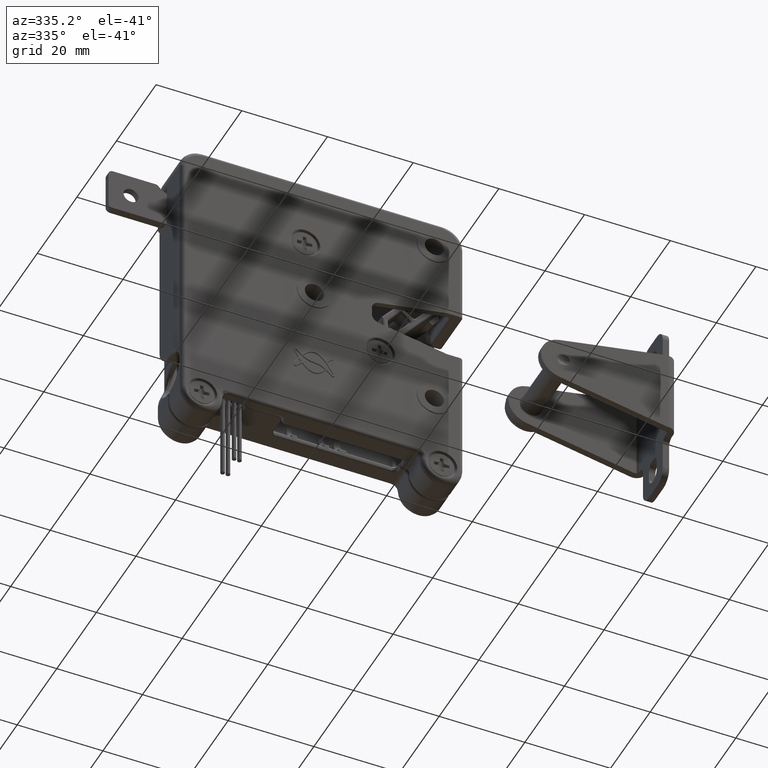
[diagram: clean part render]
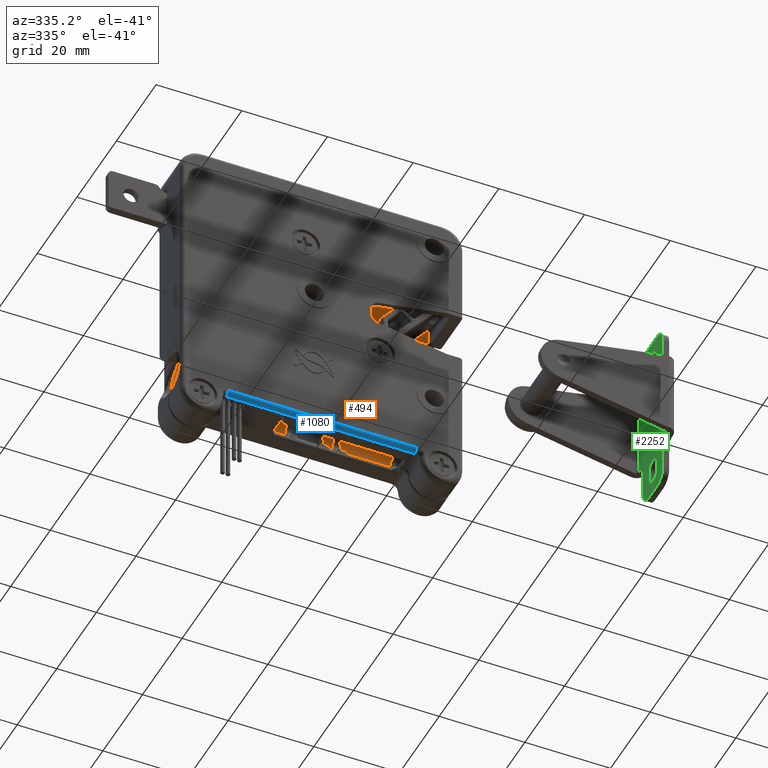
[diagram: same view with three faces highlighted in distinct colors, each labeled with its STEP entity id]
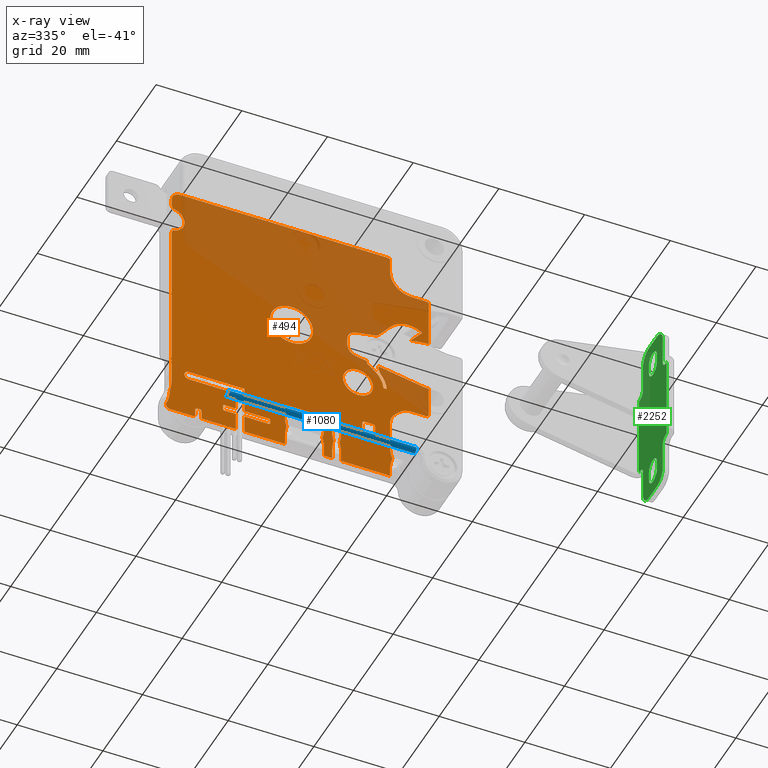
[diagram: x-ray of the same camera — body ghosted, the three highlighted faces saturated]
A machine part, auxiliary view with three faces highlighted in distinct colors.
The next image is the same camera in x-ray (body ghosted, the three faces saturated) — at least one of them is partly hidden behind the body in this view.
Their STEP definitions:

[orange] entity #494 — the highlighted planar face has unit normal (0, 1, 0).
#494=ADVANCED_FACE('',(#6121,#6122,#6123,#6124),#6120,.F.);
#6120=PLANE('',#28225);
#6121=FACE_OUTER_BOUND('',#28226,.T.);
#6122=FACE_BOUND('',#28227,.T.);
#6123=FACE_BOUND('',#28228,.T.);
#6124=FACE_BOUND('',#28229,.T.);
#28222=CARTESIAN_POINT('',(-6.94502992275E+01,-1.25000000000E+00,-4.01000000000E+01));
#28223=DIRECTION('',(0.00000000000E+00,1.00000000000E+00,0.00000000000E+00));
#28224=DIRECTION('',(0.00000000000E+00,0.00000000000E+00,1.00000000000E+00));
#28225=AXIS2_PLACEMENT_3D('',#28222,#28223,#28224);
#28226=EDGE_LOOP('',(#44143,#44144,#44145,#44146,#44147,#44148,#44149,#44150,#44151,#44152,#44153,#44154,#44155,#44156,#44157,#44158,#44159,#44160,#44161,#44162,#44163,#44164,#44165,#44166,#44167,#44168,#44169,#44170,#44171,#44172,#44173,#44174,#44175,#44176,#44177,#44178,#44179,#44180,#44181,#44182,#44183,#44184,#44185,#44186,#44187,#44188,#44189,#44190,#44191,#44192,#44193,#44194,#44195,#44196,#44197,#44198,#44199,#44200,#44201,#44202,#44203,#44204,#44205,#44206,#44207,#44208,#44209,#44210,#44211,#44212,#44213,#44214,#44215,#44216,#44217,#44218,#44219,#44220,#44221,#44222,#44223,#44224,#44225,#44226,#44227,#44228,#44229,#44230,#44231,#44232,#44233,#44234,#44235,#44236));
#28227=EDGE_LOOP('',(#44237,#44238));
#28228=EDGE_LOOP('',(#44239,#44240,#44241,#44242,#44243,#44244,#44245,#44246));
#28229=EDGE_LOOP('',(#44247,#44248));
#44143=ORIENTED_EDGE('',*,*,#55156,.T.);
#44144=ORIENTED_EDGE('',*,*,#55157,.T.);
#44145=ORIENTED_EDGE('',*,*,#55158,.T.);
#44146=ORIENTED_EDGE('',*,*,#55159,.T.);
#44147=ORIENTED_EDGE('',*,*,#54962,.T.);
#44148=ORIENTED_EDGE('',*,*,#54968,.F.);
#44149=ORIENTED_EDGE('',*,*,#54971,.T.);
#44150=ORIENTED_EDGE('',*,*,#54974,.T.);
#44151=ORIENTED_EDGE('',*,*,#55141,.T.);
#44152=ORIENTED_EDGE('',*,*,#55144,.F.);
#44153=ORIENTED_EDGE('',*,*,#55146,.T.);
#44154=ORIENTED_EDGE('',*,*,#55160,.T.);
#44155=ORIENTED_EDGE('',*,*,#55161,.T.);
#44156=ORIENTED_EDGE('',*,*,#55100,.T.);
#44157=ORIENTED_EDGE('',*,*,#55097,.F.);
#44158=ORIENTED_EDGE('',*,*,#55096,.T.);
#44159=ORIENTED_EDGE('',*,*,#54206,.T.);
#44160=ORIENTED_EDGE('',*,*,#55162,.T.);
#44161=ORIENTED_EDGE('',*,*,#55163,.F.);
#44162=ORIENTED_EDGE('',*,*,#55164,.T.);
#44163=ORIENTED_EDGE('',*,*,#55165,.F.);
#44164=ORIENTED_EDGE('',*,*,#55166,.T.);
#44165=ORIENTED_EDGE('',*,*,#55167,.T.);
#44166=ORIENTED_EDGE('',*,*,#54283,.T.);
#44167=ORIENTED_EDGE('',*,*,#54280,.T.);
#44168=ORIENTED_EDGE('',*,*,#54277,.F.);
#44169=ORIENTED_EDGE('',*,*,#54274,.T.);
#44170=ORIENTED_EDGE('',*,*,#54271,.F.);
#44171=ORIENTED_EDGE('',*,*,#54267,.T.);
#44172=ORIENTED_EDGE('',*,*,#54073,.T.);
#44173=ORIENTED_EDGE('',*,*,#55068,.F.);
#44174=ORIENTED_EDGE('',*,*,#55168,.T.);
#44175=ORIENTED_EDGE('',*,*,#54994,.T.);
#44176=ORIENTED_EDGE('',*,*,#55169,.T.);
#44177=ORIENTED_EDGE('',*,*,#54997,.T.);
#44178=ORIENTED_EDGE('',*,*,#55170,.T.);
#44179=ORIENTED_EDGE('',*,*,#55077,.F.);
#44180=ORIENTED_EDGE('',*,*,#55171,.F.);
#44181=ORIENTED_EDGE('',*,*,#55172,.F.);
#44182=ORIENTED_EDGE('',*,*,#55173,.F.);
#44183=ORIENTED_EDGE('',*,*,#55174,.F.);
#44184=ORIENTED_EDGE('',*,*,#55175,.F.);
#44185=ORIENTED_EDGE('',*,*,#55176,.T.);
#44186=ORIENTED_EDGE('',*,*,#55177,.T.);
#44187=ORIENTED_EDGE('',*,*,#55178,.T.);
#44188=ORIENTED_EDGE('',*,*,#55179,.T.);
#44189=ORIENTED_EDGE('',*,*,#55180,.T.);
#44190=ORIENTED_EDGE('',*,*,#55181,.F.);
#44191=ORIENTED_EDGE('',*,*,#54067,.F.);
#44192=ORIENTED_EDGE('',*,*,#55182,.F.);
#44193=ORIENTED_EDGE('',*,*,#55183,.T.);
#44194=ORIENTED_EDGE('',*,*,#55184,.T.);
#44195=ORIENTED_EDGE('',*,*,#55185,.F.);
#44196=ORIENTED_EDGE('',*,*,#55186,.F.);
#44197=ORIENTED_EDGE('',*,*,#55187,.F.);
#44198=ORIENTED_EDGE('',*,*,#55188,.T.);
#44199=ORIENTED_EDGE('',*,*,#55189,.T.);
#44200=ORIENTED_EDGE('',*,*,#55190,.F.);
#44201=ORIENTED_EDGE('',*,*,#55191,.F.);
#44202=ORIENTED_EDGE('',*,*,#53994,.F.);
#44203=ORIENTED_EDGE('',*,*,#54158,.T.);
#44204=ORIENTED_EDGE('',*,*,#54164,.T.);
#44205=ORIENTED_EDGE('',*,*,#55192,.F.);
#44206=ORIENTED_EDGE('',*,*,#55193,.T.);
#44207=ORIENTED_EDGE('',*,*,#53991,.F.);
#44208=ORIENTED_EDGE('',*,*,#54146,.T.);
#44209=ORIENTED_EDGE('',*,*,#54162,.T.);
#44210=ORIENTED_EDGE('',*,*,#55194,.F.);
#44211=ORIENTED_EDGE('',*,*,#55195,.F.);
#44212=ORIENTED_EDGE('',*,*,#55109,.F.);
#44213=ORIENTED_EDGE('',*,*,#54085,.T.);
#44214=ORIENTED_EDGE('',*,*,#55196,.T.);
#44215=ORIENTED_EDGE('',*,*,#55197,.F.);
#44216=ORIENTED_EDGE('',*,*,#55198,.T.);
#44217=ORIENTED_EDGE('',*,*,#55199,.F.);
#44218=ORIENTED_EDGE('',*,*,#55200,.T.);
#44219=ORIENTED_EDGE('',*,*,#55201,.T.);
#44220=ORIENTED_EDGE('',*,*,#55202,.T.);
#44221=ORIENTED_EDGE('',*,*,#55138,.F.);
#44222=ORIENTED_EDGE('',*,*,#55203,.T.);
#44223=ORIENTED_EDGE('',*,*,#55204,.T.);
#44224=ORIENTED_EDGE('',*,*,#55205,.T.);
#44225=ORIENTED_EDGE('',*,*,#55206,.T.);
#44226=ORIENTED_EDGE('',*,*,#55207,.T.);
#44227=ORIENTED_EDGE('',*,*,#55208,.F.);
#44228=ORIENTED_EDGE('',*,*,#55209,.T.);
#44229=ORIENTED_EDGE('',*,*,#55210,.T.);
#44230=ORIENTED_EDGE('',*,*,#55211,.T.);
#44231=ORIENTED_EDGE('',*,*,#55212,.T.);
#44232=ORIENTED_EDGE('',*,*,#55213,.T.);
#44233=ORIENTED_EDGE('',*,*,#55214,.T.);
#44234=ORIENTED_EDGE('',*,*,#55215,.T.);
#44235=ORIENTED_EDGE('',*,*,#55216,.T.);
#44236=ORIENTED_EDGE('',*,*,#55217,.T.);
#44237=ORIENTED_EDGE('',*,*,#55218,.T.);
#44238=ORIENTED_EDGE('',*,*,#55219,.T.);
#44239=ORIENTED_EDGE('',*,*,#55220,.T.);
#44240=ORIENTED_EDGE('',*,*,#55221,.F.);
#44241=ORIENTED_EDGE('',*,*,#55222,.T.);
#44242=ORIENTED_EDGE('',*,*,#55223,.F.);
#44243=ORIENTED_EDGE('',*,*,#55224,.T.);
#44244=ORIENTED_EDGE('',*,*,#55225,.F.);
#44245=ORIENTED_EDGE('',*,*,#55226,.T.);
#44246=ORIENTED_EDGE('',*,*,#55227,.F.);
#44247=ORIENTED_EDGE('',*,*,#55228,.F.);
#44248=ORIENTED_EDGE('',*,*,#55229,.F.);
#53991=EDGE_CURVE('',#60795,#60780,#60802,.T.);
#53994=EDGE_CURVE('',#60816,#60823,#60824,.T.);
#54067=EDGE_CURVE('',#61313,#61320,#61321,.T.);
#54073=EDGE_CURVE('',#61362,#61355,#61363,.T.);
#54085=EDGE_CURVE('',#61446,#61439,#61447,.T.);
#54146=EDGE_CURVE('',#60795,#61859,#61860,.T.);
#54158=EDGE_CURVE('',#60816,#61931,#61938,.T.);
#54162=EDGE_CURVE('',#61859,#61958,#61965,.T.);
#54164=EDGE_CURVE('',#61931,#61971,#61978,.T.);
#54206=EDGE_CURVE('',#62263,#62256,#62264,.T.);
#54267=EDGE_CURVE('',#62678,#61362,#62679,.T.);
#54271=EDGE_CURVE('',#62678,#62691,#62705,.T.);
#54274=EDGE_CURVE('',#62711,#62691,#62725,.T.);
#54277=EDGE_CURVE('',#62711,#62731,#62745,.T.);
#54280=EDGE_CURVE('',#62751,#62731,#62765,.T.);
#54283=EDGE_CURVE('',#62771,#62751,#62785,.T.);
#54962=EDGE_CURVE('',#67336,#67337,#67338,.T.);
#54968=EDGE_CURVE('',#67371,#67337,#67378,.T.);
#54971=EDGE_CURVE('',#67371,#67391,#67398,.T.);
#54974=EDGE_CURVE('',#67391,#67411,#67418,.T.);
#54994=EDGE_CURVE('',#67555,#67556,#67557,.T.);
#54997=EDGE_CURVE('',#67575,#67576,#67577,.T.);
#55068=EDGE_CURVE('',#68041,#61355,#68048,.T.);
#55077=EDGE_CURVE('',#68099,#68106,#68107,.T.);
#55096=EDGE_CURVE('',#68225,#62263,#68232,.T.);
#55097=EDGE_CURVE('',#68225,#68238,#68239,.T.);
#55100=EDGE_CURVE('',#68251,#68238,#68258,.T.);
#55109=EDGE_CURVE('',#61446,#68309,#68316,.T.);
#55138=EDGE_CURVE('',#68503,#68488,#68510,.T.);
#55141=EDGE_CURVE('',#67411,#68523,#68530,.T.);
#55144=EDGE_CURVE('',#68543,#68523,#68550,.T.);
#55146=EDGE_CURVE('',#68543,#68557,#68564,.T.);
#55156=EDGE_CURVE('',#68631,#68632,#68633,.T.);
#55157=EDGE_CURVE('',#68632,#68639,#68640,.T.);
#55158=EDGE_CURVE('',#68639,#68646,#68647,.T.);
#55159=EDGE_CURVE('',#68646,#67336,#68653,.T.);
#55160=EDGE_CURVE('',#68557,#68659,#68660,.T.);
#55161=EDGE_CURVE('',#68659,#68251,#68666,.T.);
#55162=EDGE_CURVE('',#62256,#68672,#68673,.T.);
#55163=EDGE_CURVE('',#68679,#68672,#68680,.T.);
#55164=EDGE_CURVE('',#68679,#68686,#68687,.T.);
#55165=EDGE_CURVE('',#68693,#68686,#68694,.T.);
#55166=EDGE_CURVE('',#68693,#68700,#68701,.T.);
#55167=EDGE_CURVE('',#68700,#62771,#68707,.T.);
#55168=EDGE_CURVE('',#68041,#67555,#68713,.T.);
#55169=EDGE_CURVE('',#67556,#67575,#68719,.T.);
#55170=EDGE_CURVE('',#67576,#68106,#68725,.T.);
#55171=EDGE_CURVE('',#68731,#68099,#68732,.T.);
#55172=EDGE_CURVE('',#68738,#68731,#68739,.T.);
#55173=EDGE_CURVE('',#68745,#68738,#68746,.T.);
#55174=EDGE_CURVE('',#68752,#68745,#68753,.T.);
#55175=EDGE_CURVE('',#68759,#68752,#68760,.T.);
#55176=EDGE_CURVE('',#68759,#68766,#68767,.T.);
#55177=EDGE_CURVE('',#68766,#68773,#68774,.T.);
#55178=EDGE_CURVE('',#68773,#68780,#68781,.T.);
#55179=EDGE_CURVE('',#68780,#68787,#68788,.T.);
#55180=EDGE_CURVE('',#68787,#68794,#68795,.T.);
#55181=EDGE_CURVE('',#61320,#68794,#68801,.T.);
#55182=EDGE_CURVE('',#68807,#61313,#68808,.T.);
#55183=EDGE_CURVE('',#68807,#66980,#68814,.T.);
#55184=EDGE_CURVE('',#66980,#68820,#68821,.T.);
#55185=EDGE_CURVE('',#68827,#68820,#68828,.T.);
#55186=EDGE_CURVE('',#68834,#68827,#68835,.T.);
#55187=EDGE_CURVE('',#68841,#68834,#68842,.T.);
#55188=EDGE_CURVE('',#68841,#68848,#68849,.T.);
#55189=EDGE_CURVE('',#68848,#68855,#68856,.T.);
#55190=EDGE_CURVE('',#68862,#68855,#68863,.T.);
#55191=EDGE_CURVE('',#60823,#68862,#68869,.T.);
#55192=EDGE_CURVE('',#68875,#61971,#68876,.T.);
#55193=EDGE_CURVE('',#68875,#60780,#68882,.T.);
#55194=EDGE_CURVE('',#68888,#61958,#68889,.T.);
#55195=EDGE_CURVE('',#68309,#68888,#68895,.T.);
#55196=EDGE_CURVE('',#61439,#68901,#68902,.T.);
#55197=EDGE_CURVE('',#68908,#68901,#68909,.T.);
#55198=EDGE_CURVE('',#68908,#68915,#68916,.T.);
#55199=EDGE_CURVE('',#68922,#68915,#68923,.T.);
#55200=EDGE_CURVE('',#68922,#68929,#68930,.T.);
#55201=EDGE_CURVE('',#68929,#68936,#68937,.T.);
#55202=EDGE_CURVE('',#68936,#68488,#68943,.T.);
#55203=EDGE_CURVE('',#68503,#68949,#68950,.T.);
#55204=EDGE_CURVE('',#68949,#68956,#68957,.T.);
#55205=EDGE_CURVE('',#68956,#68963,#68964,.T.);
#55206=EDGE_CURVE('',#68963,#68970,#68971,.T.);
#55207=EDGE_CURVE('',#68970,#68977,#68978,.T.);
#55208=EDGE_CURVE('',#68984,#68977,#68985,.T.);
#55209=EDGE_CURVE('',#68984,#68991,#68992,.T.);
#55210=EDGE_CURVE('',#68991,#68998,#68999,.T.);
#55211=EDGE_CURVE('',#68998,#69005,#69006,.T.);
#55212=EDGE_CURVE('',#69005,#69012,#69013,.T.);
#55213=EDGE_CURVE('',#69012,#69019,#69020,.T.);
#55214=EDGE_CURVE('',#69019,#69026,#69027,.T.);
#55215=EDGE_CURVE('',#69026,#69033,#69034,.T.);
#55216=EDGE_CURVE('',#69033,#69040,#69041,.T.);
#55217=EDGE_CURVE('',#69040,#68631,#69047,.T.);
#55218=EDGE_CURVE('',#69053,#69054,#69055,.T.);
#55219=EDGE_CURVE('',#69054,#69053,#69061,.T.);
#55220=EDGE_CURVE('',#69067,#69068,#69069,.T.);
#55221=EDGE_CURVE('',#69075,#69068,#69076,.T.);
#55222=EDGE_CURVE('',#69075,#69082,#69083,.T.);
#55223=EDGE_CURVE('',#69089,#69082,#69090,.T.);
#55224=EDGE_CURVE('',#69089,#69096,#69097,.T.);
#55225=EDGE_CURVE('',#69103,#69096,#69104,.T.);
#55226=EDGE_CURVE('',#69103,#69110,#69111,.T.);
#55227=EDGE_CURVE('',#69067,#69110,#69117,.T.);
#55228=EDGE_CURVE('',#69123,#69124,#69125,.T.);
#55229=EDGE_CURVE('',#69124,#69123,#69131,.T.);
#60780=VERTEX_POINT('',#99595);
#60795=VERTEX_POINT('',#99604);
#60802=LINE('',#99609,#99610);
#60816=VERTEX_POINT('',#99617);
#60823=VERTEX_POINT('',#99622);
#60824=LINE('',#99623,#99624);
#61313=VERTEX_POINT('',#99996);
#61320=VERTEX_POINT('',#100000);
#61321=LINE('',#100001,#100002);
#61355=VERTEX_POINT('',#100022);
#61362=VERTEX_POINT('',#100026);
#61363=LINE('',#100027,#100028);
#61439=VERTEX_POINT('',#100081);
#61446=VERTEX_POINT('',#100086);
#61447=(BOUNDED_CURVE() B_SPLINE_CURVE(3,(#100087,#100088,#100089,#100090,#100091,#100092,#100093,#100094),.UNSPECIFIED.,.F.,.F.) B_SPLINE_CURVE_WITH_KNOTS((4,2,2,4),(0.00000000000E+00,5.86977351804E-04,1.17395470361E-03,2.34790940722E-03),.UNSPECIFIED.) CURVE() GEOMETRIC_REPRESENTATION_ITEM() RATIONAL_B_SPLINE_CURVE((1.00000000000E+00,1.00000000000E+00,1.00000000000E+00,1.00000000000E+00,1.00000000000E+00,1.00000000000E+00,1.00000000000E+00,1.00000000000E+00)) REPRESENTATION_ITEM('') );
#61859=VERTEX_POINT('',#100377);
#61860=(BOUNDED_CURVE() B_SPLINE_CURVE(3,(#100378,#100379,#100380,#100381,#100382,#100383),.UNSPECIFIED.,.F.,.F.) B_SPLINE_CURVE_WITH_KNOTS((4,2,4),(0.00000000000E+00,8.93027046888E-04,1.78605409378E-03),.UNSPECIFIED.) CURVE() GEOMETRIC_REPRESENTATION_ITEM() RATIONAL_B_SPLINE_CURVE((1.00000000000E+00,1.00000000000E+00,1.00000000000E+00,1.00000000000E+00,1.00000000000E+00,1.00000000000E+00)) REPRESENTATION_ITEM('') );
#61931=VERTEX_POINT('',#100429);
#61938=(BOUNDED_CURVE() B_SPLINE_CURVE(3,(#100434,#100435,#100436,#100437,#100438,#100439),.UNSPECIFIED.,.F.,.F.) B_SPLINE_CURVE_WITH_KNOTS((4,2,4),(0.00000000000E+00,8.93027046888E-04,1.78605409378E-03),.UNSPECIFIED.) CURVE() GEOMETRIC_REPRESENTATION_ITEM() RATIONAL_B_SPLINE_CURVE((1.00000000000E+00,1.00000000000E+00,1.00000000000E+00,1.00000000000E+00,1.00000000000E+00,1.00000000000E+00)) REPRESENTATION_ITEM('') );
#61958=VERTEX_POINT('',#100450);
#61965=(BOUNDED_CURVE() B_SPLINE_CURVE(3,(#100455,#100456,#100457,#100458,#100459,#100460),.UNSPECIFIED.,.F.,.F.) B_SPLINE_CURVE_WITH_KNOTS((4,2,4),(-1.78605409378E-03,-8.93027046888E-04,-0.00000000000E+00),.UNSPECIFIED.) CURVE() GEOMETRIC_REPRESENTATION_ITEM() RATIONAL_B_SPLINE_CURVE((1.00000000000E+00,1.00000000000E+00,1.00000000000E+00,1.00000000000E+00,1.00000000000E+00,1.00000000000E+00)) REPRESENTATION_ITEM('') );
#61971=VERTEX_POINT('',#100461);
#61978=(BOUNDED_CURVE() B_SPLINE_CURVE(3,(#100466,#100467,#100468,#100469,#100470,#100471),.UNSPECIFIED.,.F.,.F.) B_SPLINE_CURVE_WITH_KNOTS((4,2,4),(-1.78605409378E-03,-8.93027046888E-04,-0.00000000000E+00),.UNSPECIFIED.) CURVE() GEOMETRIC_REPRESENTATION_ITEM() RATIONAL_B_SPLINE_CURVE((1.00000000000E+00,1.00000000000E+00,1.00000000000E+00,1.00000000000E+00,1.00000000000E+00,1.00000000000E+00)) REPRESENTATION_ITEM('') );
#62256=VERTEX_POINT('',#100650);
#62263=VERTEX_POINT('',#100655);
#62264=LINE('',#100656,#100657);
#62678=VERTEX_POINT('',#100936);
#62679=LINE('',#100937,#100938);
#62691=VERTEX_POINT('',#100943);
#62705=CIRCLE('',#100955,5.00000000000E-01);
#62711=VERTEX_POINT('',#100956);
#62725=LINE('',#100964,#100965);
#62731=VERTEX_POINT('',#100967);
#62745=CIRCLE('',#100979,5.00000000000E-01);
#62751=VERTEX_POINT('',#100980);
#62765=LINE('',#100988,#100989);
#62771=VERTEX_POINT('',#100991);
#62785=CIRCLE('',#101003,5.00000000000E-01);
#66980=VERTEX_POINT('',#103719);
#67336=VERTEX_POINT('',#103939);
#67337=VERTEX_POINT('',#103940);
#67338=LINE('',#103941,#103942);
#67371=VERTEX_POINT('',#103960);
#67378=CIRCLE('',#103967,5.00000000000E-01);
#67391=VERTEX_POINT('',#103972);
#67398=LINE('',#103976,#103977);
#67411=VERTEX_POINT('',#103984);
#67418=CIRCLE('',#103991,5.00000000000E+00);
#67555=VERTEX_POINT('',#104081);
#67556=VERTEX_POINT('',#104082);
#67557=CIRCLE('',#104086,3.00000000000E-01);
#67575=VERTEX_POINT('',#104093);
#67576=VERTEX_POINT('',#104094);
#67577=CIRCLE('',#104098,3.00000000000E-01);
#68041=VERTEX_POINT('',#104383);
#68048=LINE('',#104387,#104388);
#68099=VERTEX_POINT('',#104415);
#68106=VERTEX_POINT('',#104419);
#68107=LINE('',#104420,#104421);
#68225=VERTEX_POINT('',#104488);
#68232=CIRCLE('',#104495,1.00000000000E+00);
#68238=VERTEX_POINT('',#104496);
#68239=CIRCLE('',#104500,3.00000000000E+00);
#68251=VERTEX_POINT('',#104504);
#68258=CIRCLE('',#104511,1.00000000000E+00);
#68309=VERTEX_POINT('',#104538);
#68316=LINE('',#104542,#104543);
#68488=VERTEX_POINT('',#104674);
#68503=VERTEX_POINT('',#104683);
#68510=LINE('',#104687,#104688);
#68523=VERTEX_POINT('',#104694);
#68530=LINE('',#104698,#104699);
#68543=VERTEX_POINT('',#104706);
#68550=CIRCLE('',#104713,5.00000000000E-01);
#68557=VERTEX_POINT('',#104715);
#68564=LINE('',#104719,#104720);
#68631=VERTEX_POINT('',#104762);
#68632=VERTEX_POINT('',#104763);
#68633=CIRCLE('',#104767,5.50000000000E+00);
#68639=VERTEX_POINT('',#104768);
#68640=LINE('',#104769,#104770);
#68646=VERTEX_POINT('',#104772);
#68647=LINE('',#104773,#104774);
#68653=LINE('',#104776,#104777);
#68659=VERTEX_POINT('',#104779);
#68660=CIRCLE('',#104783,2.00000000000E+00);
#68666=LINE('',#104784,#104785);
#68672=VERTEX_POINT('',#104787);
#68673=(BOUNDED_CURVE() B_SPLINE_CURVE(3,(#104788,#104789,#104790,#104791,#104792,#104793,#104794,#104795),.UNSPECIFIED.,.F.,.F.) B_SPLINE_CURVE_WITH_KNOTS((4,2,2,4),(0.00000000000E+00,5.86977351804E-04,1.17395470361E-03,2.34790940722E-03),.UNSPECIFIED.) CURVE() GEOMETRIC_REPRESENTATION_ITEM() RATIONAL_B_SPLINE_CURVE((1.00000000000E+00,1.00000000000E+00,1.00000000000E+00,1.00000000000E+00,1.00000000000E+00,1.00000000000E+00,1.00000000000E+00,1.00000000000E+00)) REPRESENTATION_ITEM('') );
#68679=VERTEX_POINT('',#104796);
#68680=LINE('',#104797,#104798);
#68686=VERTEX_POINT('',#104800);
#68687=(BOUNDED_CURVE() B_SPLINE_CURVE(3,(#104801,#104802,#104803,#104804,#104805,#104806,#104807,#104808),.UNSPECIFIED.,.F.,.F.) B_SPLINE_CURVE_WITH_KNOTS((4,2,2,4),(-2.50077713031E-03,-1.25038856515E-03,-6.25194282577E-04,-0.00000000000E+00),.UNSPECIFIED.) CURVE() GEOMETRIC_REPRESENTATION_ITEM() RATIONAL_B_SPLINE_CURVE((1.00000000000E+00,1.00000000000E+00,1.00000000000E+00,1.00000000000E+00,1.00000000000E+00,1.00000000000E+00,1.00000000000E+00,1.00000000000E+00)) REPRESENTATION_ITEM('') );
#68693=VERTEX_POINT('',#104809);
#68694=LINE('',#104810,#104811);
#68700=VERTEX_POINT('',#104813);
#68701=CIRCLE('',#104817,1.00000000000E+00);
#68707=LINE('',#104818,#104819);
#68713=LINE('',#104821,#104822);
#68719=LINE('',#104824,#104825);
#68725=LINE('',#104827,#104828);
#68731=VERTEX_POINT('',#104830);
#68732=LINE('',#104831,#104832);
#68738=VERTEX_POINT('',#104834);
#68739=CIRCLE('',#104838,1.00000000000E+00);
#68745=VERTEX_POINT('',#104839);
#68746=CIRCLE('',#104843,1.00000000000E+00);
#68752=VERTEX_POINT('',#104844);
#68753=LINE('',#104845,#104846);
#68759=VERTEX_POINT('',#104848);
#68760=LINE('',#104849,#104850);
#68766=VERTEX_POINT('',#104852);
#68767=LINE('',#104853,#104854);
#68773=VERTEX_POINT('',#104856);
#68774=CIRCLE('',#104860,3.00000000000E-01);
#68780=VERTEX_POINT('',#104861);
#68781=LINE('',#104862,#104863);
#68787=VERTEX_POINT('',#104865);
#68788=CIRCLE('',#104869,3.00000000000E-01);
#68794=VERTEX_POINT('',#104870);
#68795=LINE('',#104871,#104872);
#68801=LINE('',#104874,#104875);
#68807=VERTEX_POINT('',#104877);
#68808=LINE('',#104878,#104879);
#68814=(BOUNDED_CURVE() B_SPLINE_CURVE(3,(#104881,#104882,#104883,#104884,#104885,#104886),.UNSPECIFIED.,.F.,.F.) B_SPLINE_CURVE_WITH_KNOTS((4,2,4),(0.00000000000E+00,8.93027046889E-04,1.78605409378E-03),.UNSPECIFIED.) CURVE() GEOMETRIC_REPRESENTATION_ITEM() RATIONAL_B_SPLINE_CURVE((1.00000000000E+00,1.00000000000E+00,1.00000000000E+00,1.00000000000E+00,1.00000000000E+00,1.00000000000E+00)) REPRESENTATION_ITEM('') );
#68820=VERTEX_POINT('',#104887);
#68821=(BOUNDED_CURVE() B_SPLINE_CURVE(3,(#104888,#104889,#104890,#104891,#104892,#104893),.UNSPECIFIED.,.F.,.F.) B_SPLINE_CURVE_WITH_KNOTS((4,2,4),(-1.78605409378E-03,-8.93027046888E-04,-0.00000000000E+00),.UNSPECIFIED.) CURVE() GEOMETRIC_REPRESENTATION_ITEM() RATIONAL_B_SPLINE_CURVE((1.00000000000E+00,1.00000000000E+00,1.00000000000E+00,1.00000000000E+00,1.00000000000E+00,1.00000000000E+00)) REPRESENTATION_ITEM('') );
#68827=VERTEX_POINT('',#104894);
#68828=LINE('',#104895,#104896);
#68834=VERTEX_POINT('',#104898);
#68835=LINE('',#104899,#104900);
#68841=VERTEX_POINT('',#104902);
#68842=LINE('',#104903,#104904);
#68848=VERTEX_POINT('',#104906);
#68849=(BOUNDED_CURVE() B_SPLINE_CURVE(3,(#104907,#104908,#104909,#104910,#104911,#104912),.UNSPECIFIED.,.F.,.F.) B_SPLINE_CURVE_WITH_KNOTS((4,2,4),(0.00000000000E+00,8.93027046888E-04,1.78605409378E-03),.UNSPECIFIED.) CURVE() GEOMETRIC_REPRESENTATION_ITEM() RATIONAL_B_SPLINE_CURVE((1.00000000000E+00,1.00000000000E+00,1.00000000000E+00,1.00000000000E+00,1.00000000000E+00,1.00000000000E+00)) REPRESENTATION_ITEM('') );
#68855=VERTEX_POINT('',#104913);
#68856=(BOUNDED_CURVE() B_SPLINE_CURVE(3,(#104914,#104915,#104916,#104917,#104918,#104919),.UNSPECIFIED.,.F.,.F.) B_SPLINE_CURVE_WITH_KNOTS((4,2,4),(-1.78605409378E-03,-8.93027046889E-04,-0.00000000000E+00),.UNSPECIFIED.) CURVE() GEOMETRIC_REPRESENTATION_ITEM() RATIONAL_B_SPLINE_CURVE((1.00000000000E+00,1.00000000000E+00,1.00000000000E+00,1.00000000000E+00,1.00000000000E+00,1.00000000000E+00)) REPRESENTATION_ITEM('') );
#68862=VERTEX_POINT('',#104920);
#68863=LINE('',#104921,#104922);
#68869=LINE('',#104924,#104925);
#68875=VERTEX_POINT('',#104927);
#68876=LINE('',#104928,#104929);
#68882=LINE('',#104931,#104932);
#68888=VERTEX_POINT('',#104934);
#68889=LINE('',#104935,#104936);
#68895=LINE('',#104938,#104939);
#68901=VERTEX_POINT('',#104941);
#68902=(BOUNDED_CURVE() B_SPLINE_CURVE(3,(#104942,#104943,#104944,#104945,#104946,#104947,#104948,#104949),.UNSPECIFIED.,.F.,.F.) B_SPLINE_CURVE_WITH_KNOTS((4,2,2,4),(-2.34790940721E-03,-1.17395470361E-03,-5.86977351804E-04,-0.00000000000E+00),.UNSPECIFIED.) CURVE() GEOMETRIC_REPRESENTATION_ITEM() RATIONAL_B_SPLINE_CURVE((1.00000000000E+00,1.00000000000E+00,1.00000000000E+00,1.00000000000E+00,1.00000000000E+00,1.00000000000E+00,1.00000000000E+00,1.00000000000E+00)) REPRESENTATION_ITEM('') );
#68908=VERTEX_POINT('',#104950);
#68909=LINE('',#104951,#104952);
#68915=VERTEX_POINT('',#104954);
#68916=CIRCLE('',#104958,4.00000000000E+00);
#68922=VERTEX_POINT('',#104959);
#68923=LINE('',#104960,#104961);
#68929=VERTEX_POINT('',#104963);
#68930=CIRCLE('',#104967,4.00000000000E+00);
#68936=VERTEX_POINT('',#104968);
#68937=LINE('',#104969,#104970);
#68943=CIRCLE('',#104975,5.00000000000E-01);
#68949=VERTEX_POINT('',#104976);
#68950=LINE('',#104977,#104978);
#68956=VERTEX_POINT('',#104980);
#68957=LINE('',#104981,#104982);
#68963=VERTEX_POINT('',#104984);
#68964=CIRCLE('',#104988,3.34999588333E+00);
#68970=VERTEX_POINT('',#104989);
#68971=LINE('',#104990,#104991);
#68977=VERTEX_POINT('',#104993);
#68978=(BOUNDED_CURVE() B_SPLINE_CURVE(2,(#104994,#104995,#104996),.UNSPECIFIED.,.F.,.F.) B_SPLINE_CURVE_WITH_KNOTS((3,3),(0.00000000000E+00,1.00000000000E+00),.UNSPECIFIED.) CURVE() GEOMETRIC_REPRESENTATION_ITEM() RATIONAL_B_SPLINE_CURVE((1.00000000000E+00,9.71469365664E-01,1.00000000000E+00)) REPRESENTATION_ITEM('') );
#68984=VERTEX_POINT('',#104997);
#68985=(BOUNDED_CURVE() B_SPLINE_CURVE(1,(#104998,#104999),.UNSPECIFIED.,.F.,.F.) B_SPLINE_CURVE_WITH_KNOTS((2,2),(0.00000000000E+00,1.00000000000E+00),.UNSPECIFIED.) CURVE() GEOMETRIC_REPRESENTATION_ITEM() RATIONAL_B_SPLINE_CURVE((1.00000000000E+00,1.00000000000E+00)) REPRESENTATION_ITEM('') );
#68991=VERTEX_POINT('',#105000);
#68992=(BOUNDED_CURVE() B_SPLINE_CURVE(2,(#105001,#105002,#105003),.UNSPECIFIED.,.F.,.F.) B_SPLINE_CURVE_WITH_KNOTS((3,3),(0.00000000000E+00,1.00000000000E+00),.UNSPECIFIED.) CURVE() GEOMETRIC_REPRESENTATION_ITEM() RATIONAL_B_SPLINE_CURVE((1.00000000000E+00,9.23879532511E-01,1.00000000000E+00)) REPRESENTATION_ITEM('') );
#68998=VERTEX_POINT('',#105004);
#68999=LINE('',#105005,#105006);
#69005=VERTEX_POINT('',#105008);
#69006=LINE('',#105009,#105010);
#69012=VERTEX_POINT('',#105012);
#69013=LINE('',#105013,#105014);
#69019=VERTEX_POINT('',#105016);
#69020=CIRCLE('',#105020,2.50000000000E+00);
#69026=VERTEX_POINT('',#105021);
#69027=LINE('',#105022,#105023);
#69033=VERTEX_POINT('',#105025);
#69034=CIRCLE('',#105029,2.50000000000E+00);
#69040=VERTEX_POINT('',#105030);
#69041=LINE('',#105031,#105032);
#69047=LINE('',#105034,#105035);
#69053=VERTEX_POINT('',#105037);
#69054=VERTEX_POINT('',#105038);
#69055=CIRCLE('',#105042,3.50000000000E+00);
#69061=CIRCLE('',#105046,3.50000000000E+00);
#69067=VERTEX_POINT('',#105047);
#69068=VERTEX_POINT('',#105048);
#69069=LINE('',#105049,#105050);
#69075=VERTEX_POINT('',#105052);
#69076=CIRCLE('',#105056,5.00000000000E-01);
#69082=VERTEX_POINT('',#105057);
#69083=LINE('',#105058,#105059);
#69089=VERTEX_POINT('',#105061);
#69090=CIRCLE('',#105065,5.00000000000E-01);
#69096=VERTEX_POINT('',#105066);
#69097=LINE('',#105067,#105068);
#69103=VERTEX_POINT('',#105070);
#69104=CIRCLE('',#105074,5.00000000000E-01);
#69110=VERTEX_POINT('',#105075);
#69111=LINE('',#105076,#105077);
#69117=CIRCLE('',#105082,5.00000000000E-01);
#69123=VERTEX_POINT('',#105083);
#69124=VERTEX_POINT('',#105084);
#69125=CIRCLE('',#105088,5.00000000000E+00);
#69131=CIRCLE('',#105092,5.00000000000E+00);
#99595=CARTESIAN_POINT('',(-2.20000000000E+01,-1.25000000000E+00,-2.30000000000E+01));
#99604=CARTESIAN_POINT('',(-2.20000000000E+01,-1.25000000000E+00,-2.72421604169E+01));
#99609=CARTESIAN_POINT('',(-2.20000000000E+01,-1.25000000000E+00,-2.72421604169E+01));
#99610=VECTOR('',#99611,4.24216041688E+00);
#99611=DIRECTION('',(-2.51243234320E-15,0.00000000000E+00,1.00000000000E+00));
#99617=CARTESIAN_POINT('',(-2.40000000000E+01,-1.25000000000E+00,-3.07578395831E+01));
#99622=CARTESIAN_POINT('',(-2.40000000000E+01,-1.25000000000E+00,-3.39999999998E+01));
#99623=CARTESIAN_POINT('',(-2.40000000000E+01,-1.25000000000E+00,-3.07578395831E+01));
#99624=VECTOR('',#99625,3.24216041664E+00);
#99625=DIRECTION('',(2.19157180537E-15,0.00000000000E+00,-1.00000000000E+00));
#99996=CARTESIAN_POINT('',(-3.50000000000E+01,-1.25000000000E+00,-3.39999999998E+01));
#100000=CARTESIAN_POINT('',(-4.45000000000E+01,-1.25000000000E+00,-3.39999999999E+01));
#100001=CARTESIAN_POINT('',(-3.50000000000E+01,-1.25000000000E+00,-3.40000000000E+01));
#100002=VECTOR('',#100003,9.49999999998E+00);
#100003=DIRECTION('',(-1.00000000000E+00,0.00000000000E+00,-1.36125029377E-13));
#100022=CARTESIAN_POINT('',(-4.65000000000E+01,-1.25000000000E+00,-3.39999999999E+01));
#100026=CARTESIAN_POINT('',(-5.45000000000E+01,-1.25000000000E+00,-3.40000000000E+01));
#100027=CARTESIAN_POINT('',(-5.45000000000E+01,-1.25000000000E+00,-3.40000000000E+01));
#100028=VECTOR('',#100029,7.99999999998E+00);
#100029=DIRECTION('',(1.00000000000E+00,0.00000000000E+00,-1.02939878844E-12));
#100081=CARTESIAN_POINT('',(-1.00000000000E+01,-1.25000000000E+00,-2.90000000000E+01));
#100086=CARTESIAN_POINT('',(-1.05000000000E+01,-1.25000000000E+00,-3.12912878475E+01));
#100087=CARTESIAN_POINT('',(-1.05000000000E+01,-1.25000000000E+00,-3.12912878475E+01));
#100088=CARTESIAN_POINT('',(-1.05000000000E+01,-1.25000000000E+00,-3.10939904492E+01));
#100089=CARTESIAN_POINT('',(-1.04805309378E+01,-1.25000000000E+00,-3.08992177603E+01));
#100090=CARTESIAN_POINT('',(-1.04203581653E+01,-1.25000000000E+00,-3.05124260494E+01));
#100091=CARTESIAN_POINT('',(-1.03791787674E+01,-1.25000000000E+00,-3.03201279385E+01));
#100092=CARTESIAN_POINT('',(-1.02372082256E+01,-1.25000000000E+00,-2.97484557097E+01));
#100093=CARTESIAN_POINT('',(-1.01179858641E+01,-1.25000000000E+00,-2.93731076206E+01));
#100094=CARTESIAN_POINT('',(-1.00000000000E+01,-1.25000000000E+00,-2.90000000000E+01));
#100377=CARTESIAN_POINT('',(-2.23000000000E+01,-1.25000000000E+00,-2.90000000000E+01));
#100378=CARTESIAN_POINT('',(-2.20000000000E+01,-1.25000000000E+00,-2.72421604169E+01));
#100379=CARTESIAN_POINT('',(-2.20000000000E+01,-1.25000000000E+00,-2.75409197877E+01));
#100380=CARTESIAN_POINT('',(-2.20445072778E+01,-1.25000000000E+00,-2.78366145963E+01));
#100381=CARTESIAN_POINT('',(-2.21579560348E+01,-1.25000000000E+00,-2.84213793778E+01));
#100382=CARTESIAN_POINT('',(-2.22291794627E+01,-1.25000000000E+00,-2.87108715453E+01));
#100383=CARTESIAN_POINT('',(-2.23000000000E+01,-1.25000000000E+00,-2.90000000000E+01));
#100429=CARTESIAN_POINT('',(-2.37000000000E+01,-1.25000000000E+00,-2.90000000000E+01));
#100434=CARTESIAN_POINT('',(-2.40000000000E+01,-1.25000000000E+00,-3.07578395831E+01));
#100435=CARTESIAN_POINT('',(-2.40000000000E+01,-1.25000000000E+00,-3.04590802123E+01));
#100436=CARTESIAN_POINT('',(-2.39554927222E+01,-1.25000000000E+00,-3.01633854037E+01));
#100437=CARTESIAN_POINT('',(-2.38420439652E+01,-1.25000000000E+00,-2.95786206222E+01));
#100438=CARTESIAN_POINT('',(-2.37708205372E+01,-1.25000000000E+00,-2.92891284547E+01));
#100439=CARTESIAN_POINT('',(-2.37000000000E+01,-1.25000000000E+00,-2.90000000000E+01));
#100450=CARTESIAN_POINT('',(-2.20000000000E+01,-1.25000000000E+00,-3.07578395831E+01));
#100455=CARTESIAN_POINT('',(-2.23000000000E+01,-1.25000000000E+00,-2.90000000000E+01));
#100456=CARTESIAN_POINT('',(-2.22291794627E+01,-1.25000000000E+00,-2.92891284547E+01));
#100457=CARTESIAN_POINT('',(-2.21579560348E+01,-1.25000000000E+00,-2.95786206222E+01));
#100458=CARTESIAN_POINT('',(-2.20445072778E+01,-1.25000000000E+00,-3.01633854037E+01));
#100459=CARTESIAN_POINT('',(-2.20000000000E+01,-1.25000000000E+00,-3.04590802123E+01));
#100460=CARTESIAN_POINT('',(-2.20000000000E+01,-1.25000000000E+00,-3.07578395831E+01));
#100461=CARTESIAN_POINT('',(-2.40000000000E+01,-1.25000000000E+00,-2.72421604169E+01));
#100466=CARTESIAN_POINT('',(-2.37000000000E+01,-1.25000000000E+00,-2.90000000000E+01));
#100467=CARTESIAN_POINT('',(-2.37708205373E+01,-1.25000000000E+00,-2.87108715453E+01));
#100468=CARTESIAN_POINT('',(-2.38420439652E+01,-1.25000000000E+00,-2.84213793778E+01));
#100469=CARTESIAN_POINT('',(-2.39554927222E+01,-1.25000000000E+00,-2.78366145963E+01));
#100470=CARTESIAN_POINT('',(-2.40000000000E+01,-1.25000000000E+00,-2.75409197877E+01));
#100471=CARTESIAN_POINT('',(-2.40000000000E+01,-1.25000000000E+00,-2.72421604169E+01));
#100650=CARTESIAN_POINT('',(-6.15000000000E+01,-1.25000000000E+00,-2.67087121525E+01));
#100655=CARTESIAN_POINT('',(-6.15000000000E+01,-1.25000000000E+00,1.56270166538E+01));
#100656=CARTESIAN_POINT('',(-6.15000000000E+01,-1.25000000000E+00,1.56270166538E+01));
#100657=VECTOR('',#100658,4.23357288063E+01);
#100658=DIRECTION('',(0.00000000000E+00,0.00000000000E+00,-1.00000000000E+00));
#100936=CARTESIAN_POINT('',(-5.45000000000E+01,-1.25000000000E+00,-3.20000000000E+01));
#100937=CARTESIAN_POINT('',(-5.45000000000E+01,-1.25000000000E+00,-3.20000000000E+01));
#100938=VECTOR('',#100939,1.99999999998E+00);
#100939=DIRECTION('',(0.00000000000E+00,0.00000000000E+00,-1.00000000000E+00));
#100943=CARTESIAN_POINT('',(-5.50000000000E+01,-1.25000000000E+00,-3.15000000000E+01));
#100952=CARTESIAN_POINT('',(-5.50000000000E+01,-1.25000000000E+00,-3.20000000000E+01));
#100953=DIRECTION('',(0.00000000000E+00,-1.00000000000E+00,0.00000000000E+00));
#100954=DIRECTION('',(1.00000000000E+00,0.00000000000E+00,-1.83690953073E-16));
#100955=AXIS2_PLACEMENT_3D('',#100952,#100953,#100954);
#100956=CARTESIAN_POINT('',(-5.55000000000E+01,-1.25000000000E+00,-3.15000000000E+01));
#100964=CARTESIAN_POINT('',(-5.55000000000E+01,-1.25000000000E+00,-3.15000000000E+01));
#100965=VECTOR('',#100966,5.00000000000E-01);
#100966=DIRECTION('',(1.00000000000E+00,0.00000000000E+00,4.83169060317E-13));
#100967=CARTESIAN_POINT('',(-5.60000000000E+01,-1.25000000000E+00,-3.20000000000E+01));
#100976=CARTESIAN_POINT('',(-5.55000000000E+01,-1.25000000000E+00,-3.20000000000E+01));
#100977=DIRECTION('',(0.00000000000E+00,-1.00000000000E+00,0.00000000000E+00));
#100978=DIRECTION('',(-0.00000000000E+00,-0.00000000000E+00,1.00000000000E+00));
#100979=AXIS2_PLACEMENT_3D('',#100976,#100977,#100978);
#100980=CARTESIAN_POINT('',(-5.60000000000E+01,-1.25000000000E+00,-3.35000000000E+01));
#100988=CARTESIAN_POINT('',(-5.60000000000E+01,-1.25000000000E+00,-3.35000000000E+01));
#100989=VECTOR('',#100990,1.49999999998E+00);
#100990=DIRECTION('',(0.00000000000E+00,0.00000000000E+00,1.00000000000E+00));
#100991=CARTESIAN_POINT('',(-5.65000000000E+01,-1.25000000000E+00,-3.40000000000E+01));
#101000=CARTESIAN_POINT('',(-5.65000000000E+01,-1.25000000000E+00,-3.35000000000E+01));
#101001=DIRECTION('',(0.00000000000E+00,-1.00000000000E+00,0.00000000000E+00));
#101002=DIRECTION('',(-0.00000000000E+00,-0.00000000000E+00,1.00000000000E+00));
#101003=AXIS2_PLACEMENT_3D('',#101000,#101001,#101002);
#103719=CARTESIAN_POINT('',(-3.47000000000E+01,-1.25000000000E+00,-2.90000000000E+01));
#103939=CARTESIAN_POINT('',(-1.50000000000E+00,-1.25000000000E+00,6.24999999995E+00));
#103940=CARTESIAN_POINT('',(-1.50000000000E+00,-1.25000000000E+00,1.75000000000E+01));
#103941=CARTESIAN_POINT('',(-1.50000000000E+00,-1.25000000000E+00,6.24999999995E+00));
#103942=VECTOR('',#103943,1.12500000001E+01);
#103943=DIRECTION('',(0.00000000000E+00,0.00000000000E+00,1.00000000000E+00));
#103960=CARTESIAN_POINT('',(-2.00000000000E+00,-1.25000000000E+00,1.80000000000E+01));
#103964=CARTESIAN_POINT('',(-2.00000000000E+00,-1.25000000000E+00,1.75000000000E+01));
#103965=DIRECTION('',(0.00000000000E+00,1.00000000000E+00,-0.00000000000E+00));
#103966=DIRECTION('',(-0.00000000000E+00,-0.00000000000E+00,-1.00000000000E+00));
#103967=AXIS2_PLACEMENT_3D('',#103964,#103965,#103966);
#103972=CARTESIAN_POINT('',(-5.49999999999E+00,-1.25000000000E+00,1.80000000000E+01));
#103976=CARTESIAN_POINT('',(-2.00000000000E+00,-1.25000000000E+00,1.80000000000E+01));
#103977=VECTOR('',#103978,3.49999999999E+00);
#103978=DIRECTION('',(-1.00000000000E+00,0.00000000000E+00,-1.60785670492E-12));
#103984=CARTESIAN_POINT('',(-1.05000000000E+01,-1.25000000000E+00,2.30000000000E+01));
#103988=CARTESIAN_POINT('',(-5.49999999999E+00,-1.25000000000E+00,2.30000000000E+01));
#103989=DIRECTION('',(0.00000000000E+00,1.00000000000E+00,-0.00000000000E+00));
#103990=DIRECTION('',(-0.00000000000E+00,-0.00000000000E+00,-1.00000000000E+00));
#103991=AXIS2_PLACEMENT_3D('',#103988,#103989,#103990);
#104081=CARTESIAN_POINT('',(-4.92000000000E+01,-1.25000000000E+00,-2.97500000000E+01));
#104082=CARTESIAN_POINT('',(-4.95000000000E+01,-1.25000000000E+00,-2.94500000000E+01));
#104083=CARTESIAN_POINT('',(-4.92000000000E+01,-1.25000000000E+00,-2.94500000000E+01));
#104084=DIRECTION('',(0.00000000000E+00,1.00000000000E+00,-0.00000000000E+00));
#104085=DIRECTION('',(-0.00000000000E+00,-0.00000000000E+00,-1.00000000000E+00));
#104086=AXIS2_PLACEMENT_3D('',#104083,#104084,#104085);
#104093=CARTESIAN_POINT('',(-4.95000000000E+01,-1.25000000000E+00,-2.85500000000E+01));
#104094=CARTESIAN_POINT('',(-4.92000000000E+01,-1.25000000000E+00,-2.82500000000E+01));
#104095=CARTESIAN_POINT('',(-4.92000000000E+01,-1.25000000000E+00,-2.85500000000E+01));
#104096=DIRECTION('',(0.00000000000E+00,1.00000000000E+00,-0.00000000000E+00));
#104097=DIRECTION('',(-0.00000000000E+00,-0.00000000000E+00,-1.00000000000E+00));
#104098=AXIS2_PLACEMENT_3D('',#104095,#104096,#104097);
#104383=CARTESIAN_POINT('',(-4.65000000000E+01,-1.25000000000E+00,-2.97500000000E+01));
#104387=CARTESIAN_POINT('',(-4.65000000000E+01,-1.25000000000E+00,-2.97500000000E+01));
#104388=VECTOR('',#104389,4.24999999991E+00);
#104389=DIRECTION('',(1.67186526065E-15,0.00000000000E+00,-1.00000000000E+00));
#104415=CARTESIAN_POINT('',(-4.65000000000E+01,-1.25000000000E+00,-2.40000000000E+01));
#104419=CARTESIAN_POINT('',(-4.65000000000E+01,-1.25000000000E+00,-2.82500000000E+01));
#104420=CARTESIAN_POINT('',(-4.65000000000E+01,-1.25000000000E+00,-2.40000000000E+01));
#104421=VECTOR('',#104422,4.24999999999E+00);
#104422=DIRECTION('',(1.67186526062E-15,0.00000000000E+00,-1.00000000000E+00));
#104488=CARTESIAN_POINT('',(-6.07500000000E+01,-1.25000000000E+00,1.65952624903E+01));
#104492=CARTESIAN_POINT('',(-6.05000000000E+01,-1.25000000000E+00,1.56270166538E+01));
#104493=DIRECTION('',(0.00000000000E+00,-1.00000000000E+00,0.00000000000E+00));
#104494=DIRECTION('',(-0.00000000000E+00,-0.00000000000E+00,-1.00000000000E+00));
#104495=AXIS2_PLACEMENT_3D('',#104492,#104493,#104494);
#104496=CARTESIAN_POINT('',(-6.07500000000E+01,-1.25000000000E+00,2.24047375097E+01));
#104497=CARTESIAN_POINT('',(-6.15000000000E+01,-1.25000000000E+00,1.95000000000E+01));
#104498=DIRECTION('',(0.00000000000E+00,-1.00000000000E+00,0.00000000000E+00));
#104499=DIRECTION('',(-0.00000000000E+00,-0.00000000000E+00,-1.00000000000E+00));
#104500=AXIS2_PLACEMENT_3D('',#104497,#104498,#104499);
#104504=CARTESIAN_POINT('',(-6.15000000000E+01,-1.25000000000E+00,2.33729833462E+01));
#104508=CARTESIAN_POINT('',(-6.05000000000E+01,-1.25000000000E+00,2.33729833462E+01));
#104509=DIRECTION('',(0.00000000000E+00,-1.00000000000E+00,0.00000000000E+00));
#104510=DIRECTION('',(-0.00000000000E+00,-0.00000000000E+00,-1.00000000000E+00));
#104511=AXIS2_PLACEMENT_3D('',#104508,#104509,#104510);
#104538=CARTESIAN_POINT('',(-1.05000000000E+01,-1.25000000000E+00,-3.39999999997E+01));
#104542=CARTESIAN_POINT('',(-1.05000000000E+01,-1.25000000000E+00,-3.12912878475E+01));
#104543=VECTOR('',#104544,2.70871215221E+00);
#104544=DIRECTION('',(-2.91434798189E-12,0.00000000000E+00,-1.00000000000E+00));
#104674=CARTESIAN_POINT('',(-1.50000000000E+00,-1.25000000000E+00,-1.37000000000E+01));
#104683=CARTESIAN_POINT('',(-1.50000000000E+00,-1.25000000000E+00,-6.24999999999E+00));
#104687=CARTESIAN_POINT('',(-1.50000000000E+00,-1.25000000000E+00,-6.24999999999E+00));
#104688=VECTOR('',#104689,7.45000000000E+00);
#104689=DIRECTION('',(0.00000000000E+00,0.00000000000E+00,-1.00000000000E+00));
#104694=CARTESIAN_POINT('',(-1.05000000000E+01,-1.25000000000E+00,2.65000000000E+01));
#104698=CARTESIAN_POINT('',(-1.05000000000E+01,-1.25000000000E+00,2.30000000000E+01));
#104699=VECTOR('',#104700,3.50000000000E+00);
#104700=DIRECTION('',(4.58807595091E-13,0.00000000000E+00,1.00000000000E+00));
#104706=CARTESIAN_POINT('',(-1.10000000000E+01,-1.25000000000E+00,2.70000000000E+01));
#104710=CARTESIAN_POINT('',(-1.10000000000E+01,-1.25000000000E+00,2.65000000000E+01));
#104711=DIRECTION('',(0.00000000000E+00,1.00000000000E+00,-0.00000000000E+00));
#104712=DIRECTION('',(-0.00000000000E+00,-0.00000000000E+00,-1.00000000000E+00));
#104713=AXIS2_PLACEMENT_3D('',#104710,#104711,#104712);
#104715=CARTESIAN_POINT('',(-5.95000000000E+01,-1.25000000000E+00,2.70000000000E+01));
#104719=CARTESIAN_POINT('',(-1.10000000000E+01,-1.25000000000E+00,2.70000000000E+01));
#104720=VECTOR('',#104721,4.85000000000E+01);
#104721=DIRECTION('',(-1.00000000000E+00,0.00000000000E+00,0.00000000000E+00));
#104762=CARTESIAN_POINT('',(-1.03833147992E+01,-1.24999999964E+00,7.91158128345E+00));
#104763=CARTESIAN_POINT('',(-3.03238902101E+00,-1.24999999964E+00,8.89343343834E+00));
#104764=CARTESIAN_POINT('',(-6.17007062247E+00,-1.24999999927E+00,4.37624911977E+00));
#104765=DIRECTION('',(0.00000000000E+00,1.00000000000E+00,-0.00000000000E+00));
#104766=DIRECTION('',(7.66044443119E-01,-0.00000000000E+00,-6.42787609687E-01));
#104767=AXIS2_PLACEMENT_3D('',#104764,#104765,#104766);
#104768=CARTESIAN_POINT('',(-5.74972891889E+00,-1.24999999945E+00,5.65502827249E+00));
#104769=CARTESIAN_POINT('',(-3.03238902101E+00,-1.24999999927E+00,8.89343343834E+00));
#104770=VECTOR('',#104771,4.22743469953E+00);
#104771=DIRECTION('',(-6.42786959709E-01,0.00000000000E+00,-7.66044988514E-01));
#104772=CARTESIAN_POINT('',(-2.54603500175E+00,-1.25000000000E+00,6.24999999995E+00));
#104773=CARTESIAN_POINT('',(-5.74972891889E+00,-1.25000000000E+00,5.65502827249E+00));
#104774=VECTOR('',#104775,3.25847296617E+00);
#104775=DIRECTION('',(9.83188736077E-01,0.00000000000E+00,1.82592193842E-01));
#104776=CARTESIAN_POINT('',(-2.54603500175E+00,-1.25000000000E+00,6.24999999995E+00));
#104777=VECTOR('',#104778,1.04603500175E+00);
#104778=DIRECTION('',(1.00000000000E+00,0.00000000000E+00,5.82476107298E-13));
#104779=CARTESIAN_POINT('',(-6.15000000000E+01,-1.25000000000E+00,2.50000000000E+01));
#104780=CARTESIAN_POINT('',(-5.95000000000E+01,-1.25000000000E+00,2.50000000000E+01));
#104781=DIRECTION('',(0.00000000000E+00,-1.00000000000E+00,0.00000000000E+00));
#104782=DIRECTION('',(-0.00000000000E+00,-0.00000000000E+00,-1.00000000000E+00));
#104783=AXIS2_PLACEMENT_3D('',#104780,#104781,#104782);
#104784=CARTESIAN_POINT('',(-6.15000000000E+01,-1.25000000000E+00,2.50000000000E+01));
#104785=VECTOR('',#104786,1.62701665379E+00);
#104786=DIRECTION('',(-4.79949891589E-12,0.00000000000E+00,-1.00000000000E+00));
#104787=CARTESIAN_POINT('',(-6.20000000000E+01,-1.25000000000E+00,-2.90000000000E+01));
#104788=CARTESIAN_POINT('',(-6.15000000000E+01,-1.25000000000E+00,-2.67087121525E+01));
#104789=CARTESIAN_POINT('',(-6.15000000000E+01,-1.25000000000E+00,-2.69060095508E+01));
#104790=CARTESIAN_POINT('',(-6.15194690622E+01,-1.25000000000E+00,-2.71007822397E+01));
#104791=CARTESIAN_POINT('',(-6.15796418347E+01,-1.25000000000E+00,-2.74875739506E+01));
#104792=CARTESIAN_POINT('',(-6.16208212327E+01,-1.25000000000E+00,-2.76798720615E+01));
#104793=CARTESIAN_POINT('',(-6.17627917744E+01,-1.25000000000E+00,-2.82515442903E+01));
#104794=CARTESIAN_POINT('',(-6.18820141359E+01,-1.25000000000E+00,-2.86268923794E+01));
#104795=CARTESIAN_POINT('',(-6.20000000000E+01,-1.25000000000E+00,-2.90000000000E+01));
#104796=CARTESIAN_POINT('',(-6.19319995318E+01,-1.25000000000E+00,-2.90000000000E+01));
#104797=CARTESIAN_POINT('',(-6.19319995318E+01,-1.25000000000E+00,-2.90000000000E+01));
#104798=VECTOR('',#104799,6.80004681876E-02);
#104799=DIRECTION('',(-1.00000000000E+00,0.00000000000E+00,0.00000000000E+00));
#104800=CARTESIAN_POINT('',(-6.23230678858E+01,-1.25000000000E+00,-3.14668495683E+01));
#104801=CARTESIAN_POINT('',(-6.19319995319E+01,-1.25000000000E+00,-2.90000000001E+01));
#104802=CARTESIAN_POINT('',(-6.19622191025E+01,-1.25000000000E+00,-2.94156992185E+01));
#104803=CARTESIAN_POINT('',(-6.19920459130E+01,-1.25000000000E+00,-2.98334295633E+01));
#104804=CARTESIAN_POINT('',(-6.20734497863E+01,-1.25000000000E+00,-3.04548770356E+01));
#104805=CARTESIAN_POINT('',(-6.21068344584E+01,-1.25000000000E+00,-3.06616233331E+01));
#104806=CARTESIAN_POINT('',(-6.21949876507E+01,-1.25000000000E+00,-3.10691777806E+01));
#104807=CARTESIAN_POINT('',(-6.22493982318E+01,-1.25000000000E+00,-3.12703971575E+01));
#104808=CARTESIAN_POINT('',(-6.23230678858E+01,-1.25000000000E+00,-3.14668495683E+01));
#104809=CARTESIAN_POINT('',(-6.27663280071E+01,-1.25000000000E+00,-3.26488765584E+01));
#104810=CARTESIAN_POINT('',(-6.27663280071E+01,-1.25000000000E+00,-3.26488765584E+01));
#104811=VECTOR('',#104812,1.26240537883E+00);
#104812=DIRECTION('',(3.51123441589E-01,0.00000000000E+00,9.36329177569E-01));
#104813=CARTESIAN_POINT('',(-6.18299988296E+01,-1.25000000000E+00,-3.40000000000E+01));
#104814=CARTESIAN_POINT('',(-6.18299988296E+01,-1.25000000000E+00,-3.30000000000E+01));
#104815=DIRECTION('',(0.00000000000E+00,-1.00000000000E+00,0.00000000000E+00));
#104816=DIRECTION('',(-0.00000000000E+00,-0.00000000000E+00,-1.00000000000E+00));
#104817=AXIS2_PLACEMENT_3D('',#104814,#104815,#104816);
#104818=CARTESIAN_POINT('',(-6.18299988296E+01,-1.25000000000E+00,-3.40000000000E+01));
#104819=VECTOR('',#104820,5.32999882959E+00);
#104820=DIRECTION('',(1.00000000000E+00,0.00000000000E+00,-1.02915405715E-12));
#104821=CARTESIAN_POINT('',(-4.65000000000E+01,-1.25000000000E+00,-2.97500000000E+01));
#104822=VECTOR('',#104823,2.70000000000E+00);
#104823=DIRECTION('',(-1.00000000000E+00,0.00000000000E+00,0.00000000000E+00));
#104824=CARTESIAN_POINT('',(-4.95000000000E+01,-1.25000000000E+00,-2.94500000000E+01));
#104825=VECTOR('',#104826,9.00000000000E-01);
#104826=DIRECTION('',(0.00000000000E+00,0.00000000000E+00,1.00000000000E+00));
#104827=CARTESIAN_POINT('',(-4.92000000000E+01,-1.25000000000E+00,-2.82500000000E+01));
#104828=VECTOR('',#104829,2.70000000000E+00);
#104829=DIRECTION('',(1.00000000000E+00,0.00000000000E+00,0.00000000000E+00));
#104830=CARTESIAN_POINT('',(-5.75000000000E+01,-1.25000000000E+00,-2.40000000000E+01));
#104831=CARTESIAN_POINT('',(-5.75000000000E+01,-1.25000000000E+00,-2.40000000000E+01));
#104832=VECTOR('',#104833,1.10000000000E+01);
#104833=DIRECTION('',(1.00000000000E+00,0.00000000000E+00,0.00000000000E+00));
#104834=CARTESIAN_POINT('',(-5.85000000000E+01,-1.25000000000E+00,-2.29999999850E+01));
#104835=CARTESIAN_POINT('',(-5.75000000000E+01,-1.25000000000E+00,-2.30000000000E+01));
#104836=DIRECTION('',(0.00000000000E+00,-1.00000000000E+00,0.00000000000E+00));
#104837=DIRECTION('',(-0.00000000000E+00,-0.00000000000E+00,1.00000000000E+00));
#104838=AXIS2_PLACEMENT_3D('',#104835,#104836,#104837);
#104839=CARTESIAN_POINT('',(-5.75000000000E+01,-1.25000000000E+00,-2.20000000000E+01));
#104840=CARTESIAN_POINT('',(-5.75000000000E+01,-1.25000000000E+00,-2.30000000000E+01));
#104841=DIRECTION('',(0.00000000000E+00,-1.00000000000E+00,0.00000000000E+00));
#104842=DIRECTION('',(-0.00000000000E+00,-0.00000000000E+00,1.00000000000E+00));
#104843=AXIS2_PLACEMENT_3D('',#104840,#104841,#104842);
#104844=CARTESIAN_POINT('',(-4.45000000000E+01,-1.25000000000E+00,-2.20000000000E+01));
#104845=CARTESIAN_POINT('',(-4.45000000000E+01,-1.25000000000E+00,-2.20000000000E+01));
#104846=VECTOR('',#104847,1.30000000000E+01);
#104847=DIRECTION('',(-1.00000000000E+00,0.00000000000E+00,0.00000000000E+00));
#104848=CARTESIAN_POINT('',(-4.45000000000E+01,-1.25000000000E+00,-2.82500000000E+01));
#104849=CARTESIAN_POINT('',(-4.45000000000E+01,-1.25000000000E+00,-2.82500000000E+01));
#104850=VECTOR('',#104851,6.24999999999E+00);
#104851=DIRECTION('',(-2.27373675444E-15,0.00000000000E+00,1.00000000000E+00));
#104852=CARTESIAN_POINT('',(-3.88000000000E+01,-1.25000000000E+00,-2.82500000000E+01));
#104853=CARTESIAN_POINT('',(-4.45000000000E+01,-1.25000000000E+00,-2.82500000000E+01));
#104854=VECTOR('',#104855,5.70000000000E+00);
#104855=DIRECTION('',(1.00000000000E+00,0.00000000000E+00,0.00000000000E+00));
#104856=CARTESIAN_POINT('',(-3.85000000000E+01,-1.25000000000E+00,-2.85500000000E+01));
#104857=CARTESIAN_POINT('',(-3.88000000000E+01,-1.25000000000E+00,-2.85500000000E+01));
#104858=DIRECTION('',(0.00000000000E+00,1.00000000000E+00,-0.00000000000E+00));
#104859=DIRECTION('',(-0.00000000000E+00,-0.00000000000E+00,-1.00000000000E+00));
#104860=AXIS2_PLACEMENT_3D('',#104857,#104858,#104859);
#104861=CARTESIAN_POINT('',(-3.85000000000E+01,-1.25000000000E+00,-2.94500000000E+01));
#104862=CARTESIAN_POINT('',(-3.85000000000E+01,-1.25000000000E+00,-2.85500000000E+01));
#104863=VECTOR('',#104864,9.00000000000E-01);
#104864=DIRECTION('',(7.89491928622E-15,0.00000000000E+00,-1.00000000000E+00));
#104865=CARTESIAN_POINT('',(-3.88000000000E+01,-1.25000000000E+00,-2.97500000000E+01));
#104866=CARTESIAN_POINT('',(-3.88000000000E+01,-1.25000000000E+00,-2.94500000000E+01));
#104867=DIRECTION('',(0.00000000000E+00,1.00000000000E+00,-0.00000000000E+00));
#104868=DIRECTION('',(-0.00000000000E+00,-0.00000000000E+00,-1.00000000000E+00));
#104869=AXIS2_PLACEMENT_3D('',#104866,#104867,#104868);
#104870=CARTESIAN_POINT('',(-4.45000000000E+01,-1.25000000000E+00,-2.97500000000E+01));
#104871=CARTESIAN_POINT('',(-3.88000000000E+01,-1.25000000000E+00,-2.97500000000E+01));
#104872=VECTOR('',#104873,5.70000000000E+00);
#104873=DIRECTION('',(-1.00000000000E+00,0.00000000000E+00,0.00000000000E+00));
#104874=CARTESIAN_POINT('',(-4.45000000000E+01,-1.25000000000E+00,-3.39999999999E+01));
#104875=VECTOR('',#104876,4.24999999990E+00);
#104876=DIRECTION('',(-3.34373052130E-15,0.00000000000E+00,1.00000000000E+00));
#104877=CARTESIAN_POINT('',(-3.50000000000E+01,-1.25000000000E+00,-3.07578395831E+01));
#104878=CARTESIAN_POINT('',(-3.50000000000E+01,-1.25000000000E+00,-3.07578395831E+01));
#104879=VECTOR('',#104880,3.24216041671E+00);
#104880=DIRECTION('',(-1.52752554831E-12,0.00000000000E+00,-1.00000000000E+00));
#104881=CARTESIAN_POINT('',(-3.50000000000E+01,-1.25000000000E+00,-3.07578395831E+01));
#104882=CARTESIAN_POINT('',(-3.50000000000E+01,-1.25000000000E+00,-3.04590802123E+01));
#104883=CARTESIAN_POINT('',(-3.49554927222E+01,-1.25000000000E+00,-3.01633854037E+01));
#104884=CARTESIAN_POINT('',(-3.48420439652E+01,-1.25000000000E+00,-2.95786206222E+01));
#104885=CARTESIAN_POINT('',(-3.47708205373E+01,-1.25000000000E+00,-2.92891284547E+01));
#104886=CARTESIAN_POINT('',(-3.47000000000E+01,-1.25000000000E+00,-2.90000000000E+01));
#104887=CARTESIAN_POINT('',(-3.50000000000E+01,-1.25000000000E+00,-2.72421604169E+01));
#104888=CARTESIAN_POINT('',(-3.47000000000E+01,-1.25000000000E+00,-2.90000000000E+01));
#104889=CARTESIAN_POINT('',(-3.47708205373E+01,-1.25000000000E+00,-2.87108715453E+01));
#104890=CARTESIAN_POINT('',(-3.48420439652E+01,-1.25000000000E+00,-2.84213793778E+01));
#104891=CARTESIAN_POINT('',(-3.49554927222E+01,-1.25000000000E+00,-2.78366145963E+01));
#104892=CARTESIAN_POINT('',(-3.50000000000E+01,-1.25000000000E+00,-2.75409197877E+01));
#104893=CARTESIAN_POINT('',(-3.50000000000E+01,-1.25000000000E+00,-2.72421604169E+01));
#104894=CARTESIAN_POINT('',(-3.50000000000E+01,-1.25000000000E+00,-2.30000000000E+01));
#104895=CARTESIAN_POINT('',(-3.50000000000E+01,-1.25000000000E+00,-2.30000000000E+01));
#104896=VECTOR('',#104897,4.24216041687E+00);
#104897=DIRECTION('',(-1.52588390977E-12,0.00000000000E+00,-1.00000000000E+00));
#104898=CARTESIAN_POINT('',(-2.60000000000E+01,-1.25000000000E+00,-2.30000000000E+01));
#104899=CARTESIAN_POINT('',(-2.60000000000E+01,-1.25000000000E+00,-2.30000000000E+01));
#104900=VECTOR('',#104901,9.00000000000E+00);
#104901=DIRECTION('',(-1.00000000000E+00,0.00000000000E+00,0.00000000000E+00));
#104902=CARTESIAN_POINT('',(-2.60000000000E+01,-1.25000000000E+00,-2.72421604169E+01));
#104903=CARTESIAN_POINT('',(-2.60000000000E+01,-1.25000000000E+00,-2.72421604169E+01));
#104904=VECTOR('',#104905,4.24216041687E+00);
#104905=DIRECTION('',(-2.76367557752E-14,0.00000000000E+00,1.00000000000E+00));
#104906=CARTESIAN_POINT('',(-2.63000000000E+01,-1.25000000000E+00,-2.90000000000E+01));
#104907=CARTESIAN_POINT('',(-2.60000000000E+01,-1.25000000000E+00,-2.72421604169E+01));
#104908=CARTESIAN_POINT('',(-2.60000000000E+01,-1.25000000000E+00,-2.75409197877E+01));
#104909=CARTESIAN_POINT('',(-2.60445072778E+01,-1.25000000000E+00,-2.78366145963E+01));
#104910=CARTESIAN_POINT('',(-2.61579560348E+01,-1.25000000000E+00,-2.84213793778E+01));
#104911=CARTESIAN_POINT('',(-2.62291794627E+01,-1.25000000000E+00,-2.87108715453E+01));
#104912=CARTESIAN_POINT('',(-2.63000000000E+01,-1.25000000000E+00,-2.90000000000E+01));
#104913=CARTESIAN_POINT('',(-2.60000000000E+01,-1.25000000000E+00,-3.07578395831E+01));
#104914=CARTESIAN_POINT('',(-2.63000000000E+01,-1.25000000000E+00,-2.90000000000E+01));
#104915=CARTESIAN_POINT('',(-2.62291794627E+01,-1.25000000000E+00,-2.92891284547E+01));
#104916=CARTESIAN_POINT('',(-2.61579560348E+01,-1.25000000000E+00,-2.95786206222E+01));
#104917=CARTESIAN_POINT('',(-2.60445072778E+01,-1.25000000000E+00,-3.01633854037E+01));
#104918=CARTESIAN_POINT('',(-2.60000000000E+01,-1.25000000000E+00,-3.04590802123E+01));
#104919=CARTESIAN_POINT('',(-2.60000000000E+01,-1.25000000000E+00,-3.07578395831E+01));
#104920=CARTESIAN_POINT('',(-2.60000000000E+01,-1.25000000000E+00,-3.39999999998E+01));
#104921=CARTESIAN_POINT('',(-2.60000000000E+01,-1.25000000000E+00,-3.39999999998E+01));
#104922=VECTOR('',#104923,3.24216041665E+00);
#104923=DIRECTION('',(-2.73946475671E-14,0.00000000000E+00,1.00000000000E+00));
#104924=CARTESIAN_POINT('',(-2.40000000000E+01,-1.25000000000E+00,-3.40000000000E+01));
#104925=VECTOR('',#104926,2.00000000000E+00);
#104926=DIRECTION('',(-1.00000000000E+00,0.00000000000E+00,-1.35003119794E-13));
#104927=CARTESIAN_POINT('',(-2.40000000000E+01,-1.25000000000E+00,-2.30000000000E+01));
#104928=CARTESIAN_POINT('',(-2.40000000000E+01,-1.25000000000E+00,-2.30000000000E+01));
#104929=VECTOR('',#104930,4.24216041688E+00);
#104930=DIRECTION('',(2.51243234320E-15,0.00000000000E+00,-1.00000000000E+00));
#104931=CARTESIAN_POINT('',(-2.40000000000E+01,-1.25000000000E+00,-2.30000000000E+01));
#104932=VECTOR('',#104933,2.00000000000E+00);
#104933=DIRECTION('',(1.00000000000E+00,0.00000000000E+00,0.00000000000E+00));
#104934=CARTESIAN_POINT('',(-2.20000000000E+01,-1.25000000000E+00,-3.39999999998E+01));
#104935=CARTESIAN_POINT('',(-2.20000000000E+01,-1.25000000000E+00,-3.39999999998E+01));
#104936=VECTOR('',#104937,3.24216041663E+00);
#104937=DIRECTION('',(-2.19157180538E-15,0.00000000000E+00,1.00000000000E+00));
#104938=CARTESIAN_POINT('',(-1.05000000000E+01,-1.25000000000E+00,-3.40000000000E+01));
#104939=VECTOR('',#104940,1.15000000000E+01);
#104940=DIRECTION('',(-1.00000000000E+00,0.00000000000E+00,-1.35929914668E-13));
#104941=CARTESIAN_POINT('',(-1.05000000000E+01,-1.25000000000E+00,-2.67087121525E+01));
#104942=CARTESIAN_POINT('',(-1.00000000000E+01,-1.25000000000E+00,-2.90000000000E+01));
#104943=CARTESIAN_POINT('',(-1.01179858641E+01,-1.25000000000E+00,-2.86268923794E+01));
#104944=CARTESIAN_POINT('',(-1.02372082256E+01,-1.25000000000E+00,-2.82515442903E+01));
#104945=CARTESIAN_POINT('',(-1.03791787674E+01,-1.25000000000E+00,-2.76798720615E+01));
#104946=CARTESIAN_POINT('',(-1.04203581653E+01,-1.25000000000E+00,-2.74875739506E+01));
#104947=CARTESIAN_POINT('',(-1.04805309378E+01,-1.25000000000E+00,-2.71007822397E+01));
#104948=CARTESIAN_POINT('',(-1.05000000000E+01,-1.25000000000E+00,-2.69060095508E+01));
#104949=CARTESIAN_POINT('',(-1.05000000000E+01,-1.25000000000E+00,-2.67087121525E+01));
#104950=CARTESIAN_POINT('',(-1.05000000000E+01,-1.25000000000E+00,-1.91568542495E+01));
#104951=CARTESIAN_POINT('',(-1.05000000000E+01,-1.25000000000E+00,-1.91568542495E+01));
#104952=VECTOR('',#104953,7.55185790305E+00);
#104953=DIRECTION('',(-2.91439027623E-12,0.00000000000E+00,-1.00000000000E+00));
#104954=CARTESIAN_POINT('',(-9.32842712475E+00,-1.25000000000E+00,-1.63284271247E+01));
#104955=CARTESIAN_POINT('',(-6.50000000000E+00,-1.25000000000E+00,-1.91568542495E+01));
#104956=DIRECTION('',(0.00000000000E+00,1.00000000000E+00,-0.00000000000E+00));
#104957=DIRECTION('',(-0.00000000000E+00,-0.00000000000E+00,-1.00000000000E+00));
#104958=AXIS2_PLACEMENT_3D('',#104955,#104956,#104957);
#104959=CARTESIAN_POINT('',(-8.37157287526E+00,-1.25000000000E+00,-1.53715728752E+01));
#104960=CARTESIAN_POINT('',(-8.37157287526E+00,-1.25000000000E+00,-1.53715728752E+01));
#104961=VECTOR('',#104962,1.35319625684E+00);
#104962=DIRECTION('',(-7.07106781187E-01,0.00000000000E+00,-7.07106781187E-01));
#104963=CARTESIAN_POINT('',(-5.54314575051E+00,-1.25000000000E+00,-1.42000000000E+01));
#104964=CARTESIAN_POINT('',(-5.54314575051E+00,-1.25000000000E+00,-1.82000000000E+01));
#104965=DIRECTION('',(0.00000000000E+00,1.00000000000E+00,-0.00000000000E+00));
#104966=DIRECTION('',(-0.00000000000E+00,-0.00000000000E+00,-1.00000000000E+00));
#104967=AXIS2_PLACEMENT_3D('',#104964,#104965,#104966);
#104968=CARTESIAN_POINT('',(-2.00000000000E+00,-1.25000000000E+00,-1.42000000000E+01));
#104969=CARTESIAN_POINT('',(-5.54314575051E+00,-1.25000000000E+00,-1.42000000000E+01));
#104970=VECTOR('',#104971,3.54314575050E+00);
#104971=DIRECTION('',(1.00000000000E+00,0.00000000000E+00,-1.95777254065E-12));
#104972=CARTESIAN_POINT('',(-2.00000000000E+00,-1.25000000000E+00,-1.37000000000E+01));
#104973=DIRECTION('',(0.00000000000E+00,-1.00000000000E+00,0.00000000000E+00));
#104974=DIRECTION('',(-0.00000000000E+00,-0.00000000000E+00,1.00000000000E+00));
#104975=AXIS2_PLACEMENT_3D('',#104972,#104973,#104974);
#104976=CARTESIAN_POINT('',(-2.54603500174E+00,-1.25000000000E+00,-6.24999999999E+00));
#104977=CARTESIAN_POINT('',(-1.50000000000E+00,-1.25000000000E+00,-6.24999999999E+00));
#104978=VECTOR('',#104979,1.04603500174E+00);
#104979=DIRECTION('',(-1.00000000000E+00,0.00000000000E+00,0.00000000000E+00));
#104980=CARTESIAN_POINT('',(-1.32125915142E+01,-1.25000000000E+00,-4.26906807627E+00));
#104981=CARTESIAN_POINT('',(-2.54603500174E+00,-1.25000000000E+00,-6.24999999999E+00));
#104982=VECTOR('',#104983,1.08489409216E+01);
#104983=DIRECTION('',(-9.83188736077E-01,0.00000000000E+00,1.82592193841E-01));
#104984=CARTESIAN_POINT('',(-1.26956128284E+01,-1.24999999964E+00,-6.26194975954E+00));
#104985=CARTESIAN_POINT('',(-9.86833104226E+00,-1.24999999927E+00,-4.46501274789E+00));
#104986=DIRECTION('',(0.00000000000E+00,-1.00000000000E+00,0.00000000000E+00));
#104987=DIRECTION('',(7.66044443119E-01,-0.00000000000E+00,-6.42787609687E-01));
#104988=AXIS2_PLACEMENT_3D('',#104985,#104986,#104987);
#104989=CARTESIAN_POINT('',(-1.23032370591E+01,-1.25000000000E+00,-6.87931056354E+00));
#104990=CARTESIAN_POINT('',(-1.26956128284E+01,-1.24999999927E+00,-6.26194975954E+00));
#104991=VECTOR('',#104992,7.31500585555E-01);
#104992=DIRECTION('',(5.36398435030E-01,0.00000000000E+00,-8.43964880132E-01));
#104993=CARTESIAN_POINT('',(-1.12791614505E+01,-1.24999999928E+00,-9.91200281753E+00));
#104994=CARTESIAN_POINT('',(-1.23032370591E+01,-1.24999999927E+00,-6.87931056354E+00));
#104995=CARTESIAN_POINT('',(-1.14193171922E+01,-1.24999999927E+00,-8.27006280258E+00));
#104996=CARTESIAN_POINT('',(-1.12791614505E+01,-1.24999999928E+00,-9.91200281753E+00));
#104997=CARTESIAN_POINT('',(-1.20228318114E+01,-1.25000000000E+00,-9.97706554351E+00));
#104998=CARTESIAN_POINT('',(-1.20228318114E+01,-1.25000000000E+00,-9.97706554351E+00));
#104999=CARTESIAN_POINT('',(-1.12791614505E+01,-1.24999999928E+00,-9.91200281753E+00));
#105000=CARTESIAN_POINT('',(-1.41432743419E+01,-1.25000000000E+00,-5.90373334129E+00));
#105001=CARTESIAN_POINT('',(-1.20228318114E+01,-1.25000000000E+00,-9.97706554351E+00));
#105002=CARTESIAN_POINT('',(-1.22394383556E+01,-1.24999999927E+00,-7.50124141523E+00));
#105003=CARTESIAN_POINT('',(-1.41432743419E+01,-1.24999999927E+00,-5.90373334129E+00));
#105004=CARTESIAN_POINT('',(-1.58997389175E+01,-1.24999999964E+00,-4.42988456375E+00));
#105005=CARTESIAN_POINT('',(-1.41432743419E+01,-1.24999999927E+00,-5.90373334129E+00));
#105006=VECTOR('',#105007,2.29290166041E+00);
#105007=DIRECTION('',(-7.66044443119E-01,0.00000000000E+00,6.42787609687E-01));
#105008=CARTESIAN_POINT('',(-1.59584225098E+01,-1.24999999945E+00,-3.75912803424E+00));
#105009=CARTESIAN_POINT('',(-1.58997389175E+01,-1.24999999927E+00,-4.42988456375E+00));
#105010=VECTOR('',#105011,6.73318710480E-01);
#105011=DIRECTION('',(-8.71557427437E-02,0.00000000000E+00,9.96194698092E-01));
#105012=CARTESIAN_POINT('',(-1.84564804846E+01,-1.25000000000E+00,-3.29520298178E+00));
#105013=CARTESIAN_POINT('',(-1.59584225098E+01,-1.25000000000E+00,-3.75912803424E+00));
#105014=VECTOR('',#105015,2.54077155603E+00);
#105015=DIRECTION('',(-9.83188736077E-01,0.00000000000E+00,1.82592193841E-01));
#105016=CARTESIAN_POINT('',(-2.05000000000E+01,-1.25000000000E+00,-8.37231141584E-01));
#105017=CARTESIAN_POINT('',(-1.80000000000E+01,-1.25000000000E+00,-8.37231141584E-01));
#105018=DIRECTION('',(0.00000000000E+00,1.00000000000E+00,-0.00000000000E+00));
#105019=DIRECTION('',(-0.00000000000E+00,-0.00000000000E+00,-1.00000000000E+00));
#105020=AXIS2_PLACEMENT_3D('',#105017,#105018,#105019);
#105021=CARTESIAN_POINT('',(-2.05000000000E+01,-1.25000000000E+00,8.37231141536E-01));
#105022=CARTESIAN_POINT('',(-2.05000000000E+01,-1.25000000000E+00,-8.37231141584E-01));
#105023=VECTOR('',#105024,1.67446228312E+00);
#105024=DIRECTION('',(0.00000000000E+00,0.00000000000E+00,1.00000000000E+00));
#105025=CARTESIAN_POINT('',(-1.84564804846E+01,-1.25000000000E+00,3.29520298173E+00));
#105026=CARTESIAN_POINT('',(-1.80000000000E+01,-1.25000000000E+00,8.37231141536E-01));
#105027=DIRECTION('',(0.00000000000E+00,1.00000000000E+00,-0.00000000000E+00));
#105028=DIRECTION('',(-0.00000000000E+00,-0.00000000000E+00,-1.00000000000E+00));
#105029=AXIS2_PLACEMENT_3D('',#105026,#105027,#105028);
#105030=CARTESIAN_POINT('',(-1.34816728898E+01,-1.25000000000E+00,4.21909582075E+00));
#105031=CARTESIAN_POINT('',(-1.84564804846E+01,-1.25000000000E+00,3.29520298173E+00));
#105032=VECTOR('',#105033,5.05987041170E+00);
#105033=DIRECTION('',(9.83188736077E-01,0.00000000000E+00,1.82592193842E-01));
#105034=CARTESIAN_POINT('',(-1.34816728898E+01,-1.24999999927E+00,4.21909582075E+00));
#105035=VECTOR('',#105036,4.82019416103E+00);
#105036=DIRECTION('',(6.42786988892E-01,0.00000000000E+00,7.66044964027E-01));
#105037=CARTESIAN_POINT('',(-1.80000000000E+01,-1.25000000000E+00,-7.00000000000E+00));
#105038=CARTESIAN_POINT('',(-1.80000000000E+01,-1.25000000000E+00,-1.40000000000E+01));
#105039=CARTESIAN_POINT('',(-1.80000000000E+01,-1.25000000000E+00,-1.05000000000E+01));
#105040=DIRECTION('',(0.00000000000E+00,1.00000000000E+00,0.00000000000E+00));
#105041=DIRECTION('',(-1.22460635382E-16,0.00000000000E+00,1.00000000000E+00));
#105042=AXIS2_PLACEMENT_3D('',#105039,#105040,#105041);
#105043=CARTESIAN_POINT('',(-1.80000000000E+01,-1.25000000000E+00,-1.05000000000E+01));
#105044=DIRECTION('',(0.00000000000E+00,1.00000000000E+00,0.00000000000E+00));
#105045=DIRECTION('',(-1.22460635382E-16,0.00000000000E+00,1.00000000000E+00));
#105046=AXIS2_PLACEMENT_3D('',#105043,#105044,#105045);
#105047=CARTESIAN_POINT('',(-1.65000000000E+01,-1.25000000000E+00,-2.10000000000E+01));
#105048=CARTESIAN_POINT('',(-1.45000000000E+01,-1.25000000000E+00,-2.10000000000E+01));
#105049=CARTESIAN_POINT('',(-1.65000000000E+01,-1.25000000000E+00,-2.10000000000E+01));
#105050=VECTOR('',#105051,1.99999999999E+00);
#105051=DIRECTION('',(1.00000000000E+00,0.00000000000E+00,0.00000000000E+00));
#105052=CARTESIAN_POINT('',(-1.40000000000E+01,-1.25000000000E+00,-2.15000000000E+01));
#105053=CARTESIAN_POINT('',(-1.45000000000E+01,-1.25000000000E+00,-2.15000000000E+01));
#105054=DIRECTION('',(0.00000000000E+00,-1.00000000000E+00,0.00000000000E+00));
#105055=DIRECTION('',(-0.00000000000E+00,-0.00000000000E+00,1.00000000000E+00));
#105056=AXIS2_PLACEMENT_3D('',#105053,#105054,#105055);
#105057=CARTESIAN_POINT('',(-1.40000000000E+01,-1.25000000000E+00,-2.35000000000E+01));
#105058=CARTESIAN_POINT('',(-1.40000000000E+01,-1.25000000000E+00,-2.15000000000E+01));
#105059=VECTOR('',#105060,2.00000000000E+00);
#105060=DIRECTION('',(-2.92743607133E-12,0.00000000000E+00,-1.00000000000E+00));
#105061=CARTESIAN_POINT('',(-1.45000000000E+01,-1.25000000000E+00,-2.40000000000E+01));
#105062=CARTESIAN_POINT('',(-1.45000000000E+01,-1.25000000000E+00,-2.35000000000E+01));
#105063=DIRECTION('',(0.00000000000E+00,-1.00000000000E+00,0.00000000000E+00));
#105064=DIRECTION('',(-0.00000000000E+00,-0.00000000000E+00,1.00000000000E+00));
#105065=AXIS2_PLACEMENT_3D('',#105062,#105063,#105064);
#105066=CARTESIAN_POINT('',(-1.65000000000E+01,-1.25000000000E+00,-2.40000000000E+01));
#105067=CARTESIAN_POINT('',(-1.45000000000E+01,-1.25000000000E+00,-2.40000000000E+01));
#105068=VECTOR('',#105069,1.99999999999E+00);
#105069=DIRECTION('',(-1.00000000000E+00,0.00000000000E+00,0.00000000000E+00));
#105070=CARTESIAN_POINT('',(-1.70000000000E+01,-1.25000000000E+00,-2.35000000000E+01));
#105071=CARTESIAN_POINT('',(-1.65000000000E+01,-1.25000000000E+00,-2.35000000000E+01));
#105072=DIRECTION('',(0.00000000000E+00,-1.00000000000E+00,0.00000000000E+00));
#105073=DIRECTION('',(-0.00000000000E+00,-0.00000000000E+00,1.00000000000E+00));
#105074=AXIS2_PLACEMENT_3D('',#105071,#105072,#105073);
#105075=CARTESIAN_POINT('',(-1.70000000000E+01,-1.25000000000E+00,-2.15000000000E+01));
#105076=CARTESIAN_POINT('',(-1.70000000000E+01,-1.25000000000E+00,-2.35000000000E+01));
#105077=VECTOR('',#105078,2.00000000000E+00);
#105078=DIRECTION('',(0.00000000000E+00,0.00000000000E+00,1.00000000000E+00));
#105079=CARTESIAN_POINT('',(-1.65000000000E+01,-1.25000000000E+00,-2.15000000000E+01));
#105080=DIRECTION('',(0.00000000000E+00,-1.00000000000E+00,0.00000000000E+00));
#105081=DIRECTION('',(-0.00000000000E+00,-0.00000000000E+00,1.00000000000E+00));
#105082=AXIS2_PLACEMENT_3D('',#105079,#105080,#105081);
#105083=CARTESIAN_POINT('',(-3.35000000000E+01,-1.25000000000E+00,-5.00000000000E+00));
#105084=CARTESIAN_POINT('',(-3.35000000000E+01,-1.25000000000E+00,5.00000000000E+00));
#105085=CARTESIAN_POINT('',(-3.35000000000E+01,-1.25000000000E+00,0.00000000000E+00));
#105086=DIRECTION('',(-0.00000000000E+00,-1.00000000000E+00,0.00000000000E+00));
#105087=DIRECTION('',(-1.22460635382E-16,0.00000000000E+00,1.00000000000E+00));
#105088=AXIS2_PLACEMENT_3D('',#105085,#105086,#105087);
#105089=CARTESIAN_POINT('',(-3.35000000000E+01,-1.25000000000E+00,0.00000000000E+00));
#105090=DIRECTION('',(-0.00000000000E+00,-1.00000000000E+00,0.00000000000E+00));
#105091=DIRECTION('',(-1.22460635382E-16,0.00000000000E+00,1.00000000000E+00));
#105092=AXIS2_PLACEMENT_3D('',#105089,#105090,#105091);

[blue] entity #1080 — the highlighted cylindrical surface (edge-blend (fillet) strip) has radius 1 mm, axis along (1, 0, 0).
#1080=ADVANCED_FACE('',(#12039),#12038,.T.);
#12038=CYLINDRICAL_SURFACE('',#34611,1.00000000000E+00);
#12039=FACE_OUTER_BOUND('',#34612,.T.);
#34608=CARTESIAN_POINT('',(-9.50000000000E+00,-1.15000000000E+01,-3.45000000000E+01));
#34609=DIRECTION('',(1.00000000000E+00,-0.00000000000E+00,-0.00000000000E+00));
#34610=DIRECTION('',(-0.00000000000E+00,-0.00000000000E+00,1.00000000000E+00));
#34611=AXIS2_PLACEMENT_3D('',#34608,#34609,#34610);
#34612=EDGE_LOOP('',(#47990,#47991,#47992,#47993));
#47990=ORIENTED_EDGE('',*,*,#57442,.T.);
#47991=ORIENTED_EDGE('',*,*,#57443,.F.);
#47992=ORIENTED_EDGE('',*,*,#57440,.F.);
#47993=ORIENTED_EDGE('',*,*,#57246,.F.);
#57246=EDGE_CURVE('',#82728,#82735,#82736,.T.);
#57440=EDGE_CURVE('',#82735,#83969,#83970,.T.);
#57442=EDGE_CURVE('',#82728,#83982,#83983,.T.);
#57443=EDGE_CURVE('',#83969,#83982,#83989,.T.);
#82728=VERTEX_POINT('',#113456);
#82735=VERTEX_POINT('',#113461);
#82736=LINE('',#113462,#113463);
#83969=VERTEX_POINT('',#114447);
#83970=CIRCLE('',#114451,1.00000000000E+00);
#83982=VERTEX_POINT('',#114456);
#83983=CIRCLE('',#114460,1.00000000000E+00);
#83989=LINE('',#114461,#114462);
#113456=CARTESIAN_POINT('',(-5.35000000000E+01,-1.25000000000E+01,-3.45000000000E+01));
#113461=CARTESIAN_POINT('',(-9.50000000000E+00,-1.25000000000E+01,-3.45000000000E+01));
#113462=CARTESIAN_POINT('',(-5.35000000000E+01,-1.25000000000E+01,-3.45000000000E+01));
#113463=VECTOR('',#113464,4.40000000000E+01);
#113464=DIRECTION('',(1.00000000000E+00,0.00000000000E+00,0.00000000000E+00));
#114447=CARTESIAN_POINT('',(-9.50000000000E+00,-1.15000000000E+01,-3.55000000000E+01));
#114448=CARTESIAN_POINT('',(-9.50000000000E+00,-1.15000000000E+01,-3.45000000000E+01));
#114449=DIRECTION('',(1.00000000000E+00,0.00000000000E+00,-0.00000000000E+00));
#114450=DIRECTION('',(-0.00000000000E+00,-0.00000000000E+00,-1.00000000000E+00));
#114451=AXIS2_PLACEMENT_3D('',#114448,#114449,#114450);
#114456=CARTESIAN_POINT('',(-5.35000000000E+01,-1.15000000000E+01,-3.55000000000E+01));
#114457=CARTESIAN_POINT('',(-5.35000000000E+01,-1.15000000000E+01,-3.45000000000E+01));
#114458=DIRECTION('',(1.00000000000E+00,0.00000000000E+00,-0.00000000000E+00));
#114459=DIRECTION('',(-0.00000000000E+00,-0.00000000000E+00,-1.00000000000E+00));
#114460=AXIS2_PLACEMENT_3D('',#114457,#114458,#114459);
#114461=CARTESIAN_POINT('',(-9.50000000000E+00,-1.15000000000E+01,-3.55000000000E+01));
#114462=VECTOR('',#114463,4.40000000000E+01);
#114463=DIRECTION('',(-1.00000000000E+00,0.00000000000E+00,0.00000000000E+00));

[green] entity #2252 — the highlighted planar face has unit normal (1, 0, 0).
#2252=ADVANCED_FACE('',(#23778,#23779,#23780),#23777,.F.);
#23777=PLANE('',#41989);
#23778=FACE_OUTER_BOUND('',#41990,.T.);
#23779=FACE_BOUND('',#41991,.T.);
#23780=FACE_BOUND('',#41992,.T.);
#41986=CARTESIAN_POINT('',(-1.50000000000E+00,-8.40000000000E+00,2.52000000002E+01));
#41987=DIRECTION('',(1.00000000000E+00,0.00000000000E+00,0.00000000000E+00));
#41988=DIRECTION('',(0.00000000000E+00,0.00000000000E+00,-1.00000000000E+00));
#41989=AXIS2_PLACEMENT_3D('',#41986,#41987,#41988);
#41990=EDGE_LOOP('',(#53676,#53677,#53678,#53679,#53680,#53681,#53682,#53683,#53684,#53685,#53686,#53687,#53688,#53689,#53690,#53691,#53692,#53693,#53694,#53695));
#41991=EDGE_LOOP('',(#53696,#53697,#53698,#53699));
#41992=EDGE_LOOP('',(#53700,#53701,#53702,#53703));
#53676=ORIENTED_EDGE('',*,*,#59519,.F.);
#53677=ORIENTED_EDGE('',*,*,#59544,.T.);
#53678=ORIENTED_EDGE('',*,*,#59523,.F.);
#53679=ORIENTED_EDGE('',*,*,#59525,.F.);
#53680=ORIENTED_EDGE('',*,*,#59528,.F.);
#53681=ORIENTED_EDGE('',*,*,#59531,.T.);
#53682=ORIENTED_EDGE('',*,*,#59534,.F.);
#53683=ORIENTED_EDGE('',*,*,#59537,.T.);
#53684=ORIENTED_EDGE('',*,*,#59540,.F.);
#53685=ORIENTED_EDGE('',*,*,#59476,.F.);
#53686=ORIENTED_EDGE('',*,*,#59486,.F.);
#53687=ORIENTED_EDGE('',*,*,#59545,.T.);
#53688=ORIENTED_EDGE('',*,*,#59491,.F.);
#53689=ORIENTED_EDGE('',*,*,#59495,.F.);
#53690=ORIENTED_EDGE('',*,*,#59498,.F.);
#53691=ORIENTED_EDGE('',*,*,#59501,.T.);
#53692=ORIENTED_EDGE('',*,*,#59504,.F.);
#53693=ORIENTED_EDGE('',*,*,#59507,.T.);
#53694=ORIENTED_EDGE('',*,*,#59510,.F.);
#53695=ORIENTED_EDGE('',*,*,#59513,.F.);
#53696=ORIENTED_EDGE('',*,*,#59468,.F.);
#53697=ORIENTED_EDGE('',*,*,#59471,.F.);
#53698=ORIENTED_EDGE('',*,*,#59474,.F.);
#53699=ORIENTED_EDGE('',*,*,#59464,.F.);
#53700=ORIENTED_EDGE('',*,*,#59456,.F.);
#53701=ORIENTED_EDGE('',*,*,#59459,.F.);
#53702=ORIENTED_EDGE('',*,*,#59462,.F.);
#53703=ORIENTED_EDGE('',*,*,#59452,.F.);
#59452=EDGE_CURVE('',#96993,#96994,#96995,.T.);
#59456=EDGE_CURVE('',#97021,#96993,#97022,.T.);
#59459=EDGE_CURVE('',#97041,#97021,#97042,.T.);
#59462=EDGE_CURVE('',#96994,#97041,#97061,.T.);
#59464=EDGE_CURVE('',#97073,#97074,#97075,.T.);
#59468=EDGE_CURVE('',#97101,#97073,#97102,.T.);
#59471=EDGE_CURVE('',#97121,#97101,#97122,.T.);
#59474=EDGE_CURVE('',#97074,#97121,#97141,.T.);
#59476=EDGE_CURVE('',#97153,#97154,#97155,.T.);
#59486=EDGE_CURVE('',#97216,#97153,#97223,.T.);
#59491=EDGE_CURVE('',#97251,#97258,#97259,.T.);
#59495=EDGE_CURVE('',#97285,#97251,#97286,.T.);
#59498=EDGE_CURVE('',#97305,#97285,#97306,.T.);
#59501=EDGE_CURVE('',#97305,#97325,#97326,.T.);
#59504=EDGE_CURVE('',#97345,#97325,#97346,.T.);
#59507=EDGE_CURVE('',#97345,#97365,#97366,.T.);
#59510=EDGE_CURVE('',#97385,#97365,#97386,.T.);
#59513=EDGE_CURVE('',#97405,#97385,#97406,.T.);
#59519=EDGE_CURVE('',#97438,#97405,#97445,.T.);
#59523=EDGE_CURVE('',#97465,#97472,#97473,.T.);
#59525=EDGE_CURVE('',#97485,#97465,#97486,.T.);
#59528=EDGE_CURVE('',#97505,#97485,#97506,.T.);
#59531=EDGE_CURVE('',#97505,#97525,#97526,.T.);
#59534=EDGE_CURVE('',#97545,#97525,#97546,.T.);
#59537=EDGE_CURVE('',#97545,#97565,#97566,.T.);
#59540=EDGE_CURVE('',#97154,#97565,#97585,.T.);
#59544=EDGE_CURVE('',#97438,#97472,#97609,.T.);
#59545=EDGE_CURVE('',#97216,#97258,#97615,.T.);
#96993=VERTEX_POINT('',#121680);
#96994=VERTEX_POINT('',#121681);
#96995=CIRCLE('',#121685,2.00000000000E+00);
#97021=VERTEX_POINT('',#121698);
#97022=LINE('',#121699,#121700);
#97041=VERTEX_POINT('',#121709);
#97042=CIRCLE('',#121713,2.00000000000E+00);
#97061=LINE('',#121722,#121723);
#97073=VERTEX_POINT('',#121728);
#97074=VERTEX_POINT('',#121729);
#97075=LINE('',#121730,#121731);
#97101=VERTEX_POINT('',#121744);
#97102=CIRCLE('',#121748,2.00000000000E+00);
#97121=VERTEX_POINT('',#121757);
#97122=LINE('',#121758,#121759);
#97141=CIRCLE('',#121771,2.00000000000E+00);
#97153=VERTEX_POINT('',#121776);
#97154=VERTEX_POINT('',#121777);
#97155=CIRCLE('',#121781,1.50000000000E+00);
#97216=VERTEX_POINT('',#121815);
#97223=LINE('',#121820,#121821);
#97251=VERTEX_POINT('',#121837);
#97258=VERTEX_POINT('',#121841);
#97259=LINE('',#121842,#121843);
#97285=VERTEX_POINT('',#121857);
#97286=CIRCLE('',#121861,1.50000000000E+00);
#97305=VERTEX_POINT('',#121870);
#97306=LINE('',#121871,#121872);
#97325=VERTEX_POINT('',#121881);
#97326=CIRCLE('',#121885,3.00000000000E+00);
#97345=VERTEX_POINT('',#121894);
#97346=LINE('',#121895,#121896);
#97365=VERTEX_POINT('',#121905);
#97366=CIRCLE('',#121909,3.00000000000E+00);
#97385=VERTEX_POINT('',#121918);
#97386=LINE('',#121919,#121920);
#97405=VERTEX_POINT('',#121929);
#97406=CIRCLE('',#121933,1.50000000000E+00);
#97438=VERTEX_POINT('',#121950);
#97445=LINE('',#121955,#121956);
#97465=VERTEX_POINT('',#121967);
#97472=VERTEX_POINT('',#121971);
#97473=LINE('',#121972,#121973);
#97485=VERTEX_POINT('',#121979);
#97486=CIRCLE('',#121983,1.50000000000E+00);
#97505=VERTEX_POINT('',#121992);
#97506=LINE('',#121993,#121994);
#97525=VERTEX_POINT('',#122003);
#97526=CIRCLE('',#122007,3.00000000000E+00);
#97545=VERTEX_POINT('',#122016);
#97546=LINE('',#122017,#122018);
#97565=VERTEX_POINT('',#122027);
#97566=CIRCLE('',#122031,3.00000000000E+00);
#97585=LINE('',#122040,#122041);
#97609=LINE('',#122052,#122053);
#97615=LINE('',#122055,#122056);
#121680=CARTESIAN_POINT('',(-1.50000000000E+00,-2.00000000000E+00,1.60000000001E+01));
#121681=CARTESIAN_POINT('',(-1.50000000000E+00,2.00000000000E+00,1.60000000001E+01));
#121682=CARTESIAN_POINT('',(-1.50000000000E+00,9.94759830064E-14,1.60000000001E+01));
#121683=DIRECTION('',(-1.00000000000E+00,0.00000000000E+00,-0.00000000000E+00));
#121684=DIRECTION('',(0.00000000000E+00,1.00000000000E+00,-1.83690953073E-16));
#121685=AXIS2_PLACEMENT_3D('',#121682,#121683,#121684);
#121698=CARTESIAN_POINT('',(-1.50000000000E+00,-2.00000000000E+00,1.40000000001E+01));
#121699=CARTESIAN_POINT('',(-1.50000000000E+00,-2.00000000000E+00,1.40000000001E+01));
#121700=VECTOR('',#121701,2.00000000000E+00);
#121701=DIRECTION('',(0.00000000000E+00,0.00000000000E+00,1.00000000000E+00));
#121709=CARTESIAN_POINT('',(-1.50000000000E+00,2.00000000000E+00,1.40000000001E+01));
#121710=CARTESIAN_POINT('',(-1.50000000000E+00,9.94759830064E-14,1.40000000001E+01));
#121711=DIRECTION('',(-1.00000000000E+00,-0.00000000000E+00,-0.00000000000E+00));
#121712=DIRECTION('',(-0.00000000000E+00,-0.00000000000E+00,1.00000000000E+00));
#121713=AXIS2_PLACEMENT_3D('',#121710,#121711,#121712);
#121722=CARTESIAN_POINT('',(-1.50000000000E+00,2.00000000000E+00,1.60000000001E+01));
#121723=VECTOR('',#121724,2.00000000000E+00);
#121724=DIRECTION('',(0.00000000000E+00,0.00000000000E+00,-1.00000000000E+00));
#121728=CARTESIAN_POINT('',(-1.50000000000E+00,-2.00000000000E+00,-1.60000000001E+01));
#121729=CARTESIAN_POINT('',(-1.50000000000E+00,-2.00000000000E+00,-1.40000000001E+01));
#121730=CARTESIAN_POINT('',(-1.50000000000E+00,-2.00000000000E+00,-1.60000000001E+01));
#121731=VECTOR('',#121732,2.00000000000E+00);
#121732=DIRECTION('',(0.00000000000E+00,0.00000000000E+00,1.00000000000E+00));
#121744=CARTESIAN_POINT('',(-1.50000000000E+00,2.00000000000E+00,-1.60000000001E+01));
#121745=CARTESIAN_POINT('',(-1.50000000000E+00,9.94759830064E-14,-1.60000000001E+01));
#121746=DIRECTION('',(-1.00000000000E+00,-0.00000000000E+00,-0.00000000000E+00));
#121747=DIRECTION('',(-0.00000000000E+00,-0.00000000000E+00,1.00000000000E+00));
#121748=AXIS2_PLACEMENT_3D('',#121745,#121746,#121747);
#121757=CARTESIAN_POINT('',(-1.50000000000E+00,2.00000000000E+00,-1.40000000001E+01));
#121758=CARTESIAN_POINT('',(-1.50000000000E+00,2.00000000000E+00,-1.40000000001E+01));
#121759=VECTOR('',#121760,2.00000000000E+00);
#121760=DIRECTION('',(0.00000000000E+00,0.00000000000E+00,-1.00000000000E+00));
#121768=CARTESIAN_POINT('',(-1.50000000000E+00,9.94759830064E-14,-1.40000000001E+01));
#121769=DIRECTION('',(-1.00000000000E+00,0.00000000000E+00,-0.00000000000E+00));
#121770=DIRECTION('',(0.00000000000E+00,1.00000000000E+00,-1.83690953073E-16));
#121771=AXIS2_PLACEMENT_3D('',#121768,#121769,#121770);
#121776=CARTESIAN_POINT('',(-1.50000000000E+00,6.50000000000E+00,9.99999999999E+00));
#121777=CARTESIAN_POINT('',(-1.50000000000E+00,5.00000000000E+00,1.15000000000E+01));
#121778=CARTESIAN_POINT('',(-1.50000000000E+00,6.50000000000E+00,1.15000000000E+01));
#121779=DIRECTION('',(-1.00000000000E+00,-0.00000000000E+00,-0.00000000000E+00));
#121780=DIRECTION('',(-0.00000000000E+00,-0.00000000000E+00,1.00000000000E+00));
#121781=AXIS2_PLACEMENT_3D('',#121778,#121779,#121780);
#121815=CARTESIAN_POINT('',(-1.50000000000E+00,7.00000000000E+00,9.99999999999E+00));
#121820=CARTESIAN_POINT('',(-1.50000000000E+00,7.00000000000E+00,9.99999999999E+00));
#121821=VECTOR('',#121822,5.00000000001E-01);
#121822=DIRECTION('',(0.00000000000E+00,-1.00000000000E+00,9.55679979595E-13));
#121837=CARTESIAN_POINT('',(-1.50000000000E+00,6.50000000000E+00,-1.00000000000E+01));
#121841=CARTESIAN_POINT('',(-1.50000000000E+00,7.00000000000E+00,-1.00000000000E+01));
#121842=CARTESIAN_POINT('',(-1.50000000000E+00,6.50000000000E+00,-1.00000000000E+01));
#121843=VECTOR('',#121844,4.99999999999E-01);
#121844=DIRECTION('',(0.00000000000E+00,1.00000000000E+00,-9.66338120636E-13));
#121857=CARTESIAN_POINT('',(-1.50000000000E+00,5.00000000000E+00,-1.15000000000E+01));
#121858=CARTESIAN_POINT('',(-1.50000000000E+00,6.50000000000E+00,-1.15000000000E+01));
#121859=DIRECTION('',(-1.00000000000E+00,-0.00000000000E+00,0.00000000000E+00));
#121860=DIRECTION('',(-0.00000000000E+00,9.59232693276E-13,1.00000000000E+00));
#121861=AXIS2_PLACEMENT_3D('',#121858,#121859,#121860);
#121870=CARTESIAN_POINT('',(-1.50000000000E+00,5.00000000000E+00,-1.80000000001E+01));
#121871=CARTESIAN_POINT('',(-1.50000000000E+00,5.00000000000E+00,-1.80000000001E+01));
#121872=VECTOR('',#121873,6.50000000013E+00);
#121873=DIRECTION('',(0.00000000000E+00,0.00000000000E+00,1.00000000000E+00));
#121881=CARTESIAN_POINT('',(-1.50000000000E+00,2.00000000000E+00,-2.10000000001E+01));
#121882=CARTESIAN_POINT('',(-1.50000000000E+00,2.00000000000E+00,-1.80000000001E+01));
#121883=DIRECTION('',(-1.00000000000E+00,-0.00000000000E+00,-0.00000000000E+00));
#121884=DIRECTION('',(-0.00000000000E+00,-0.00000000000E+00,1.00000000000E+00));
#121885=AXIS2_PLACEMENT_3D('',#121882,#121883,#121884);
#121894=CARTESIAN_POINT('',(-1.50000000000E+00,-2.00000000000E+00,-2.10000000001E+01));
#121895=CARTESIAN_POINT('',(-1.50000000000E+00,-2.00000000000E+00,-2.10000000001E+01));
#121896=VECTOR('',#121897,4.00000000000E+00);
#121897=DIRECTION('',(0.00000000000E+00,1.00000000000E+00,-7.24753590475E-13));
#121905=CARTESIAN_POINT('',(-1.50000000000E+00,-5.00000000000E+00,-1.80000000001E+01));
#121906=CARTESIAN_POINT('',(-1.50000000000E+00,-2.00000000000E+00,-1.80000000001E+01));
#121907=DIRECTION('',(-1.00000000000E+00,-0.00000000000E+00,-0.00000000000E+00));
#121908=DIRECTION('',(-0.00000000000E+00,-0.00000000000E+00,1.00000000000E+00));
#121909=AXIS2_PLACEMENT_3D('',#121906,#121907,#121908);
#121918=CARTESIAN_POINT('',(-1.50000000000E+00,-5.00000000000E+00,-1.15000000000E+01));
#121919=CARTESIAN_POINT('',(-1.50000000000E+00,-5.00000000000E+00,-1.15000000000E+01));
#121920=VECTOR('',#121921,6.50000000014E+00);
#121921=DIRECTION('',(0.00000000000E+00,0.00000000000E+00,-1.00000000000E+00));
#121929=CARTESIAN_POINT('',(-1.50000000000E+00,-6.50000000000E+00,-9.99999999999E+00));
#121930=CARTESIAN_POINT('',(-1.50000000000E+00,-6.50000000000E+00,-1.15000000000E+01));
#121931=DIRECTION('',(-1.00000000000E+00,-0.00000000000E+00,-0.00000000000E+00));
#121932=DIRECTION('',(-0.00000000000E+00,-0.00000000000E+00,1.00000000000E+00));
#121933=AXIS2_PLACEMENT_3D('',#121930,#121931,#121932);
#121950=CARTESIAN_POINT('',(-1.50000000000E+00,-7.00000000000E+00,-9.99999999999E+00));
#121955=CARTESIAN_POINT('',(-1.50000000000E+00,-7.00000000000E+00,-9.99999999999E+00));
#121956=VECTOR('',#121957,5.00000000002E-01);
#121957=DIRECTION('',(0.00000000000E+00,1.00000000000E+00,-9.98312543740E-13));
#121967=CARTESIAN_POINT('',(-1.50000000000E+00,-6.50000000000E+00,1.00000000000E+01));
#121971=CARTESIAN_POINT('',(-1.50000000000E+00,-7.00000000000E+00,1.00000000000E+01));
#121972=CARTESIAN_POINT('',(-1.50000000000E+00,-6.50000000000E+00,1.00000000000E+01));
#121973=VECTOR('',#121974,4.99999999999E-01);
#121974=DIRECTION('',(0.00000000000E+00,-1.00000000000E+00,1.00186525742E-12));
#121979=CARTESIAN_POINT('',(-1.50000000000E+00,-5.00000000000E+00,1.15000000000E+01));
#121980=CARTESIAN_POINT('',(-1.50000000000E+00,-6.50000000000E+00,1.15000000000E+01));
#121981=DIRECTION('',(-1.00000000000E+00,-0.00000000000E+00,-0.00000000000E+00));
#121982=DIRECTION('',(-0.00000000000E+00,-0.00000000000E+00,1.00000000000E+00));
#121983=AXIS2_PLACEMENT_3D('',#121980,#121981,#121982);
#121992=CARTESIAN_POINT('',(-1.50000000000E+00,-5.00000000000E+00,1.80000000001E+01));
#121993=CARTESIAN_POINT('',(-1.50000000000E+00,-5.00000000000E+00,1.80000000001E+01));
#121994=VECTOR('',#121995,6.50000000013E+00);
#121995=DIRECTION('',(0.00000000000E+00,0.00000000000E+00,-1.00000000000E+00));
#122003=CARTESIAN_POINT('',(-1.50000000000E+00,-2.00000000000E+00,2.10000000001E+01));
#122004=CARTESIAN_POINT('',(-1.50000000000E+00,-2.00000000000E+00,1.80000000001E+01));
#122005=DIRECTION('',(-1.00000000000E+00,-0.00000000000E+00,-0.00000000000E+00));
#122006=DIRECTION('',(-0.00000000000E+00,-0.00000000000E+00,1.00000000000E+00));
#122007=AXIS2_PLACEMENT_3D('',#122004,#122005,#122006);
#122016=CARTESIAN_POINT('',(-1.50000000000E+00,2.00000000000E+00,2.10000000001E+01));
#122017=CARTESIAN_POINT('',(-1.50000000000E+00,2.00000000000E+00,2.10000000001E+01));
#122018=VECTOR('',#122019,4.00000000000E+00);
#122019=DIRECTION('',(0.00000000000E+00,-1.00000000000E+00,-7.24753590475E-13));
#122027=CARTESIAN_POINT('',(-1.50000000000E+00,5.00000000000E+00,1.80000000001E+01));
#122028=CARTESIAN_POINT('',(-1.50000000000E+00,2.00000000000E+00,1.80000000001E+01));
#122029=DIRECTION('',(-1.00000000000E+00,0.00000000000E+00,-0.00000000000E+00));
#122030=DIRECTION('',(0.00000000000E+00,1.00000000000E+00,-1.83690953073E-16));
#122031=AXIS2_PLACEMENT_3D('',#122028,#122029,#122030);
#122040=CARTESIAN_POINT('',(-1.50000000000E+00,5.00000000000E+00,1.15000000000E+01));
#122041=VECTOR('',#122042,6.50000000015E+00);
#122042=DIRECTION('',(0.00000000000E+00,0.00000000000E+00,1.00000000000E+00));
#122052=CARTESIAN_POINT('',(-1.50000000000E+00,-7.00000000000E+00,-9.99999999999E+00));
#122053=VECTOR('',#122054,2.00000000000E+01);
#122054=DIRECTION('',(0.00000000000E+00,0.00000000000E+00,1.00000000000E+00));
#122055=CARTESIAN_POINT('',(-1.50000000000E+00,7.00000000000E+00,9.99999999999E+00));
#122056=VECTOR('',#122057,2.00000000000E+01);
#122057=DIRECTION('',(0.00000000000E+00,0.00000000000E+00,-1.00000000000E+00));